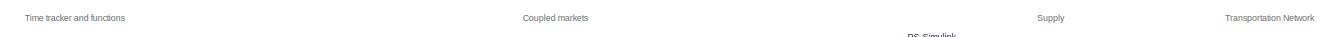
[diagram: root canvas - part 1/7, top left region]
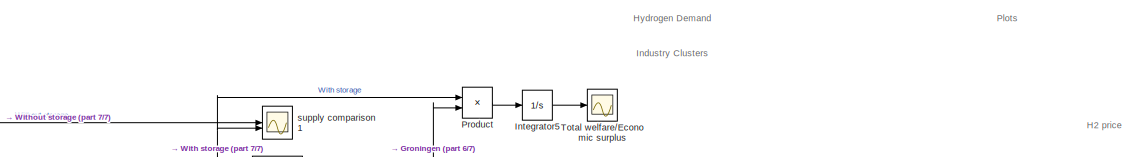
[diagram: root canvas - part 2/7, top center region]
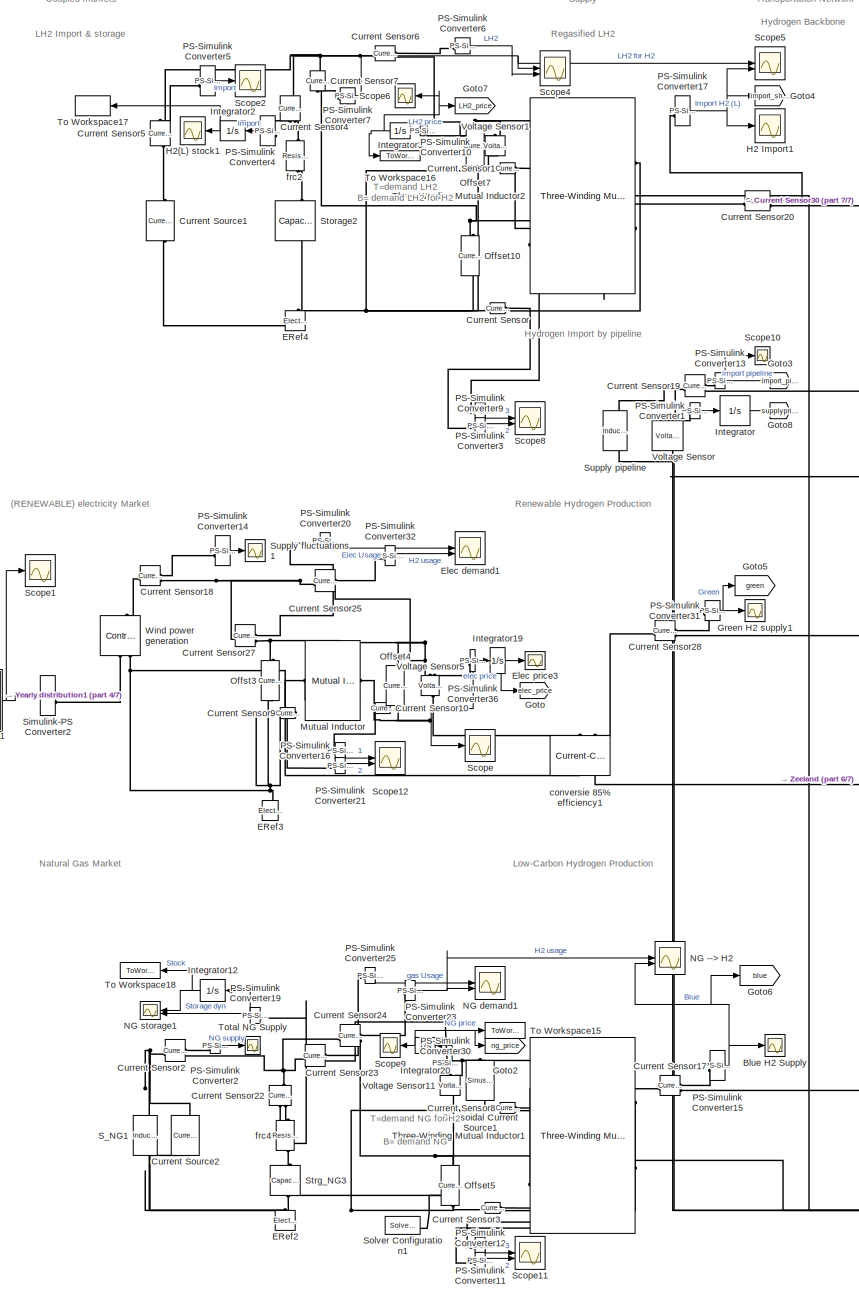
[diagram: root canvas - part 3/7, left side, full height]
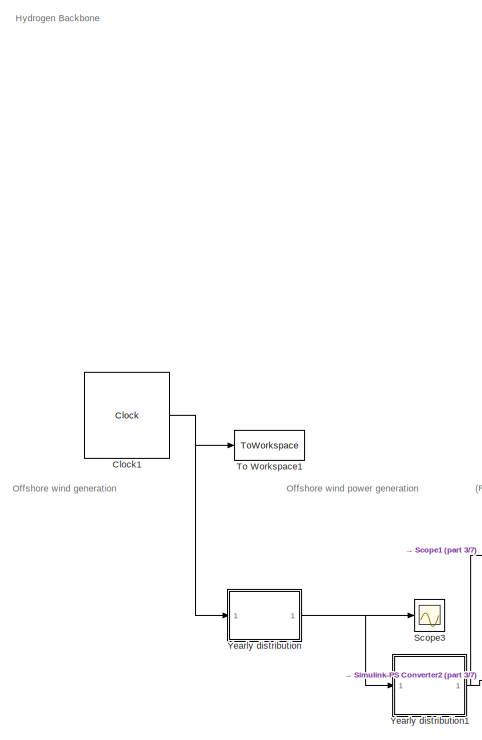
[diagram: root canvas - part 4/7, top left region]
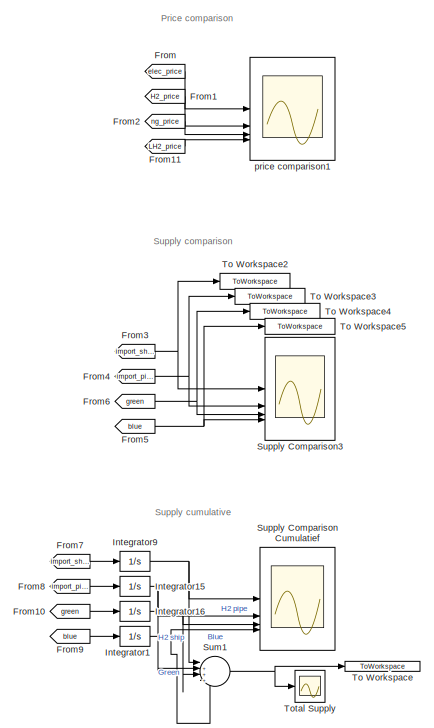
[diagram: root canvas - part 5/7, middle right region]
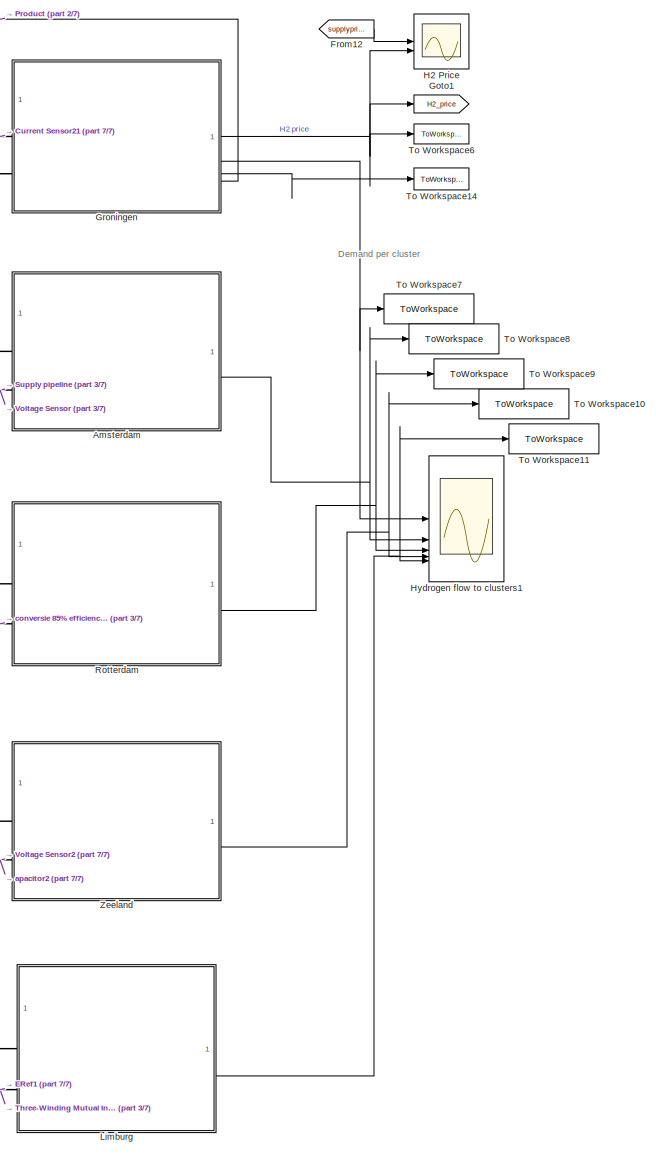
[diagram: root canvas - part 6/7, right side, full height]
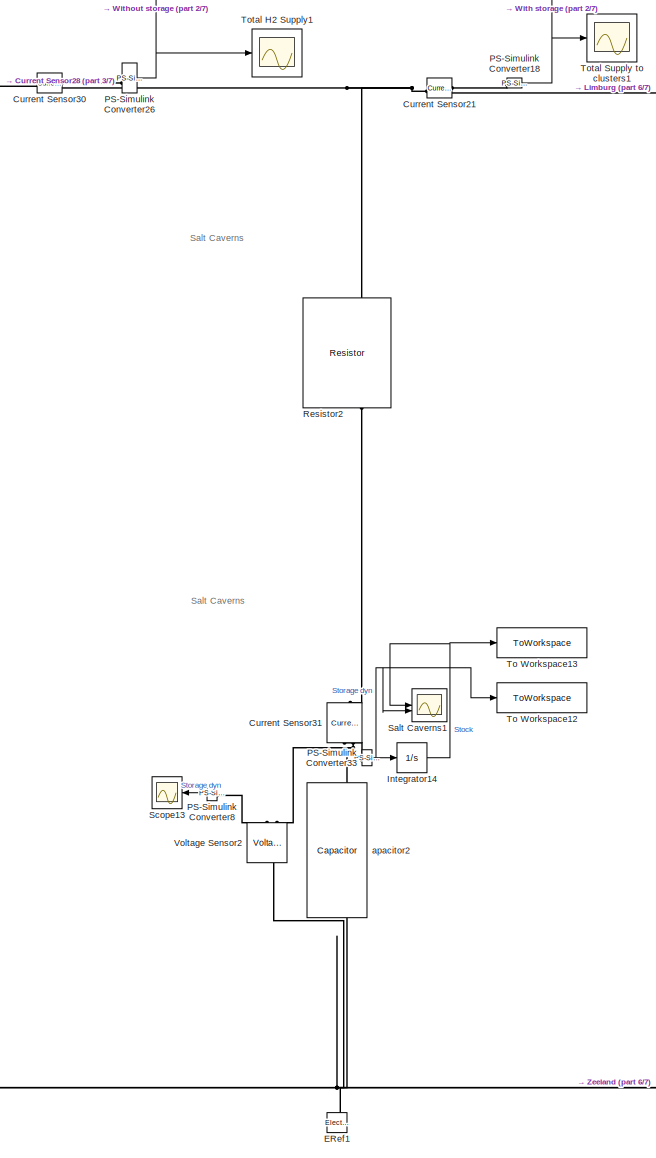
[diagram: root canvas - part 7/7, center side, full height]
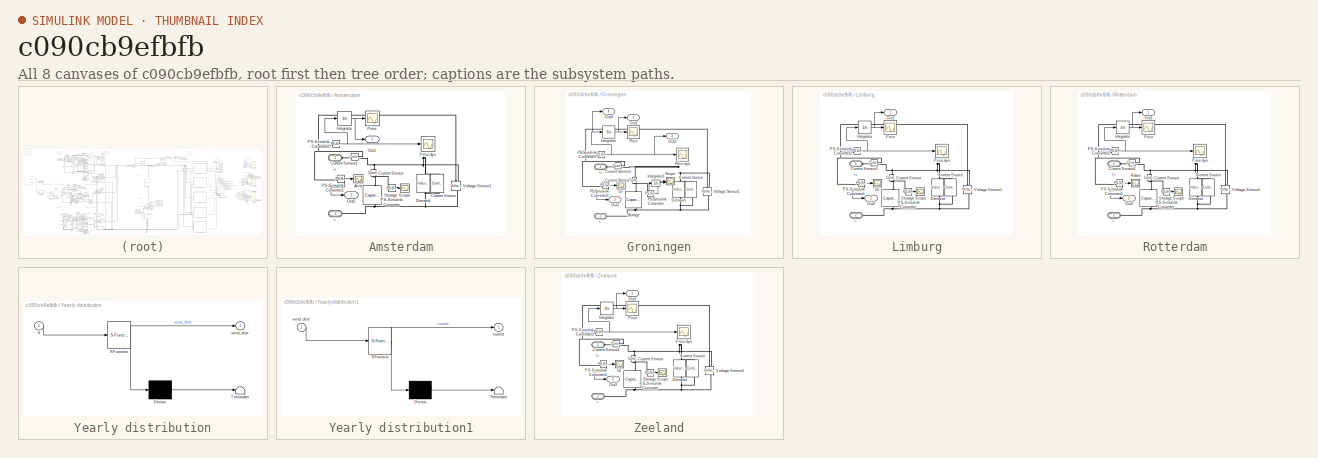
[diagram: thumbnail index - all 8 canvases of the model, root first then tree order]
MODEL slx_c090cb9efbfb
KIND model
CONFIG AbsTol = auto
CONFIG EnableMultiTasking = off
CONFIG FixedStep = 1/24
CONFIG MaxStep = auto
CONFIG MinStep = auto
CONFIG RelTol = 1e-3
CONFIG SampleTimeConstraint = Unconstrained
CONFIG SolverName = FixedStepAuto
CONFIG StartTime = 0.0
CONFIG StopTime = Z
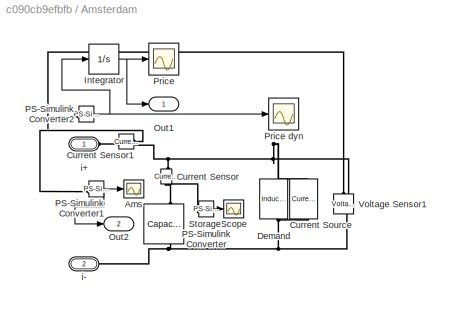
BLOCK [SubSystem] Amsterdam
BLOCK [Scope] Amsterdam/Ams
  Floating = off
  NumInputPorts = 1
  ScopeSpecificationString = Simulink.scopes.TimeScopeBlockCfg('CurrentConfiguration', extmgr.ConfigurationSet(extmgr.Configuration('Core','General UI',true),extmgr.Configuration('Core','Source UI',true),extmgr.Configuration('Sources','WiredSimulink',true,'DataLoggingVariableName','ScopeData40'),extmgr.Configuration('Visuals','Time Domain',true,'SerializedDisplays',{struct('MinYLimReal','-0.37733','MaxYLimReal','2.2197','YLab...<+1377ch>
BLOCK [Reference] Amsterdam/Current Sensor  REF=fl_lib/Electrical/Electrical Sensors/Current Sensor
  NameLocation = left
  SourceBlock = fl_lib/Electrical/Electrical Sensors/Current Sensor
  SourceType = Current Sensor
BLOCK [Reference] Amsterdam/Current Sensor1  REF=fl_lib/Electrical/Electrical Sensors/Current Sensor
  SourceBlock = fl_lib/Electrical/Electrical Sensors/Current Sensor
  SourceType = Current Sensor
BLOCK [Reference] Amsterdam/Current Source  REF=ee_lib/Sources/Current Source
  NameLocation = left
  SourceBlock = ee_lib/Sources/Current Source
  SourceType = Current Source
BLOCK [Reference] Amsterdam/Demand  REF=ee_lib/Passive/Inductor
  NameLocation = left
  SourceBlock = ee_lib/Passive/Inductor
  SourceType = Inductor
BLOCK [Integrator] Amsterdam/Integrator
BLOCK [Outport] Amsterdam/Out1
BLOCK [Outport] Amsterdam/Out2
  Port = 2
BLOCK [Reference] Amsterdam/PS-Simulink Converter  REF=nesl_utility/PS-Simulink
Converter
  SourceBlock = nesl_utility/PS-Simulink\nConverter
  SourceType = PS-Simulink\nConverter
BLOCK [Reference] Amsterdam/PS-Simulink Converter1  REF=nesl_utility/PS-Simulink
Converter
  SourceBlock = nesl_utility/PS-Simulink\nConverter
  SourceType = PS-Simulink\nConverter
BLOCK [Reference] Amsterdam/PS-Simulink Converter2  REF=nesl_utility/PS-Simulink
Converter
  SourceBlock = nesl_utility/PS-Simulink\nConverter
  SourceType = PS-Simulink\nConverter
BLOCK [Scope] Amsterdam/Price 
  Floating = off
  NumInputPorts = 1
  ScopeSpecificationString = Simulink.scopes.TimeScopeBlockCfg('CurrentConfiguration', extmgr.ConfigurationSet(extmgr.Configuration('Core','General UI',true),extmgr.Configuration('Core','Source UI',true),extmgr.Configuration('Sources','WiredSimulink',true,'DataLoggingVariableName','ScopeData41'),extmgr.Configuration('Visuals','Time Domain',true,'SerializedDisplays',{struct('MinYLimReal','-0.244','MaxYLimReal','0.02711','YLabe...<+1396ch>
BLOCK [Scope] Amsterdam/Price dyn
  Floating = off
  NumInputPorts = 1
  ScopeSpecificationString = Simulink.scopes.TimeScopeBlockCfg('CurrentConfiguration', extmgr.ConfigurationSet(extmgr.Configuration('Core','General UI',true),extmgr.Configuration('Core','Source UI',true),extmgr.Configuration('Sources','WiredSimulink',true,'DataLoggingVariableName','ScopeData42'),extmgr.Configuration('Visuals','Time Domain',true,'SerializedDisplays',{struct('MinYLimReal','-2.85552','MaxYLimReal','0.64869','YLa...<+1411ch>
BLOCK [Scope] Amsterdam/Scope
  Floating = off
  NumInputPorts = 1
  ScopeSpecificationString = Simulink.scopes.TimeScopeBlockCfg('CurrentConfiguration', extmgr.ConfigurationSet(extmgr.Configuration('Core','General UI',true),extmgr.Configuration('Core','Source UI',true),extmgr.Configuration('Sources','WiredSimulink',true,'DataLoggingVariableName','ScopeData43'),extmgr.Configuration('Visuals','Time Domain',true,'SerializedDisplays',{struct('MinYLimReal','-0.05818','MaxYLimReal','0.04351','YLa...<+1410ch>
BLOCK [Reference] Amsterdam/Storage  REF=fl_lib/Electrical/Electrical Elements/Capacitor
  NameLocation = right
  SourceBlock = fl_lib/Electrical/Electrical Elements/Capacitor
  SourceType = Capacitor
BLOCK [Reference] Amsterdam/Voltage Sensor1  REF=fl_lib/Electrical/Electrical Sensors/Voltage Sensor
  NameLocation = right
  SourceBlock = fl_lib/Electrical/Electrical Sensors/Voltage Sensor
  SourceType = Voltage Sensor
BLOCK [PMIOPort] Amsterdam/i+ 
  Side = Left
  Tag = PMCPort
BLOCK [PMIOPort] Amsterdam/i-
  Port = 2
  Side = Left
  Tag = PMCPort
BLOCK [Scope] Blue H2 Supply
  Floating = off
  NumInputPorts = 1
  ScopeSpecificationString = Simulink.scopes.TimeScopeBlockCfg('CurrentConfiguration', extmgr.ConfigurationSet(extmgr.Configuration('Core','General UI',true),extmgr.Configuration('Core','Source UI',true),extmgr.Configuration('Sources','WiredSimulink',true,'DataLoggingVariableName','ScopeData3'),extmgr.Configuration('Visuals','Time Domain',true,'SerializedDisplays',{struct('MinYLimReal','-0.07535','MaxYLimReal','0.18841','YLab...<+1398ch>
BLOCK [Clock] Clock1
  Decimation = 24
  DisplayTime = on
BLOCK [Reference] Current Sensor  REF=fl_lib/Electrical/Electrical Sensors/Current Sensor
  SourceBlock = fl_lib/Electrical/Electrical Sensors/Current Sensor
  SourceType = Current Sensor
BLOCK [Reference] Current Sensor1  REF=fl_lib/Electrical/Electrical Sensors/Current Sensor
  SourceBlock = fl_lib/Electrical/Electrical Sensors/Current Sensor
  SourceType = Current Sensor
BLOCK [Reference] Current Sensor10  REF=fl_lib/Electrical/Electrical Sensors/Current Sensor
  SourceBlock = fl_lib/Electrical/Electrical Sensors/Current Sensor
  SourceType = Current Sensor
BLOCK [Reference] Current Sensor17  REF=fl_lib/Electrical/Electrical Sensors/Current Sensor
  SourceBlock = fl_lib/Electrical/Electrical Sensors/Current Sensor
  SourceType = Current Sensor
BLOCK [Reference] Current Sensor18  REF=fl_lib/Electrical/Electrical Sensors/Current Sensor
  SourceBlock = fl_lib/Electrical/Electrical Sensors/Current Sensor
  SourceType = Current Sensor
BLOCK [Reference] Current Sensor19  REF=fl_lib/Electrical/Electrical Sensors/Current Sensor
  SourceBlock = fl_lib/Electrical/Electrical Sensors/Current Sensor
  SourceType = Current Sensor
BLOCK [Reference] Current Sensor2  REF=fl_lib/Electrical/Electrical Sensors/Current Sensor
  SourceBlock = fl_lib/Electrical/Electrical Sensors/Current Sensor
  SourceType = Current Sensor
BLOCK [Reference] Current Sensor20  REF=fl_lib/Electrical/Electrical Sensors/Current Sensor
  SourceBlock = fl_lib/Electrical/Electrical Sensors/Current Sensor
  SourceType = Current Sensor
BLOCK [Reference] Current Sensor21  REF=fl_lib/Electrical/Electrical Sensors/Current Sensor
  SourceBlock = fl_lib/Electrical/Electrical Sensors/Current Sensor
  SourceType = Current Sensor
BLOCK [Reference] Current Sensor22  REF=fl_lib/Electrical/Electrical Sensors/Current Sensor
  NameLocation = left
  SourceBlock = fl_lib/Electrical/Electrical Sensors/Current Sensor
  SourceType = Current Sensor
BLOCK [Reference] Current Sensor23  REF=fl_lib/Electrical/Electrical Sensors/Current Sensor
  SourceBlock = fl_lib/Electrical/Electrical Sensors/Current Sensor
  SourceType = Current Sensor
BLOCK [Reference] Current Sensor24  REF=fl_lib/Electrical/Electrical Sensors/Current Sensor
  SourceBlock = fl_lib/Electrical/Electrical Sensors/Current Sensor
  SourceType = Current Sensor
BLOCK [Reference] Current Sensor25  REF=fl_lib/Electrical/Electrical Sensors/Current Sensor
  SourceBlock = fl_lib/Electrical/Electrical Sensors/Current Sensor
  SourceType = Current Sensor
BLOCK [Reference] Current Sensor27  REF=fl_lib/Electrical/Electrical Sensors/Current Sensor
  SourceBlock = fl_lib/Electrical/Electrical Sensors/Current Sensor
  SourceType = Current Sensor
BLOCK [Reference] Current Sensor28  REF=fl_lib/Electrical/Electrical Sensors/Current Sensor
  SourceBlock = fl_lib/Electrical/Electrical Sensors/Current Sensor
  SourceType = Current Sensor
BLOCK [Reference] Current Sensor3  REF=fl_lib/Electrical/Electrical Sensors/Current Sensor
  SourceBlock = fl_lib/Electrical/Electrical Sensors/Current Sensor
  SourceType = Current Sensor
BLOCK [Reference] Current Sensor30  REF=fl_lib/Electrical/Electrical Sensors/Current Sensor
  SourceBlock = fl_lib/Electrical/Electrical Sensors/Current Sensor
  SourceType = Current Sensor
BLOCK [Reference] Current Sensor31  REF=fl_lib/Electrical/Electrical Sensors/Current Sensor
  NameLocation = left
  SourceBlock = fl_lib/Electrical/Electrical Sensors/Current Sensor
  SourceType = Current Sensor
BLOCK [Reference] Current Sensor4  REF=fl_lib/Electrical/Electrical Sensors/Current Sensor
  NameLocation = right
  SourceBlock = fl_lib/Electrical/Electrical Sensors/Current Sensor
  SourceType = Current Sensor
BLOCK [Reference] Current Sensor5  REF=fl_lib/Electrical/Electrical Sensors/Current Sensor
  NameLocation = right
  SourceBlock = fl_lib/Electrical/Electrical Sensors/Current Sensor
  SourceType = Current Sensor
BLOCK [Reference] Current Sensor6  REF=fl_lib/Electrical/Electrical Sensors/Current Sensor
  SourceBlock = fl_lib/Electrical/Electrical Sensors/Current Sensor
  SourceType = Current Sensor
BLOCK [Reference] Current Sensor7  REF=fl_lib/Electrical/Electrical Sensors/Current Sensor
  NameLocation = left
  SourceBlock = fl_lib/Electrical/Electrical Sensors/Current Sensor
  SourceType = Current Sensor
BLOCK [Reference] Current Sensor8  REF=fl_lib/Electrical/Electrical Sensors/Current Sensor
  SourceBlock = fl_lib/Electrical/Electrical Sensors/Current Sensor
  SourceType = Current Sensor
BLOCK [Reference] Current Sensor9  REF=fl_lib/Electrical/Electrical Sensors/Current Sensor
  SourceBlock = fl_lib/Electrical/Electrical Sensors/Current Sensor
  SourceType = Current Sensor
BLOCK [Reference] Current Source1  REF=ee_lib/Sources/Current Source
  NameLocation = right
  SourceBlock = ee_lib/Sources/Current Source
  SourceType = Current Source
BLOCK [Reference] Current Source2  REF=ee_lib/Sources/Current Source
  NameLocation = right
  SourceBlock = ee_lib/Sources/Current Source
  SourceType = Current Source
BLOCK [Reference] ERef1  REF=fl_lib/Electrical/Electrical Elements/Electrical Reference
  NameLocation = left
  SourceBlock = fl_lib/Electrical/Electrical Elements/Electrical Reference
  SourceType = Electrical Reference
BLOCK [Reference] ERef2  REF=fl_lib/Electrical/Electrical Elements/Electrical Reference
  NameLocation = left
  SourceBlock = fl_lib/Electrical/Electrical Elements/Electrical Reference
  SourceType = Electrical Reference
BLOCK [Reference] ERef3  REF=fl_lib/Electrical/Electrical Elements/Electrical Reference
  NameLocation = left
  SourceBlock = fl_lib/Electrical/Electrical Elements/Electrical Reference
  SourceType = Electrical Reference
BLOCK [Reference] ERef4  REF=fl_lib/Electrical/Electrical Elements/Electrical Reference
  NameLocation = left
  SourceBlock = fl_lib/Electrical/Electrical Elements/Electrical Reference
  SourceType = Electrical Reference
BLOCK [Scope] Elec demand1
  Floating = off
  NumInputPorts = 2
  ScopeSpecificationString = Simulink.scopes.TimeScopeBlockCfg('CurrentConfiguration', extmgr.ConfigurationSet(extmgr.Configuration('Core','General UI',true),extmgr.Configuration('Core','Source UI',true),extmgr.Configuration('Sources','WiredSimulink',true,'DataLoggingVariableName','ScopeData1'),extmgr.Configuration('Visuals','Time Domain',true,'SerializedDisplays',{struct('MinYLimReal','-0.09912','MaxYLimReal','0.27902','YLab...<+1475ch>
BLOCK [Scope] Elec price3
  Floating = off
  NameLocation = right
  NumInputPorts = 1
  ScopeSpecificationString = Simulink.scopes.TimeScopeBlockCfg('CurrentConfiguration', extmgr.ConfigurationSet(extmgr.Configuration('Core','General UI',true),extmgr.Configuration('Core','Source UI',true),extmgr.Configuration('Sources','WiredSimulink',true,'DataLoggingVariableName','ScopeData2'),extmgr.Configuration('Visuals','Time Domain',true,'SerializedDisplays',{struct('MinYLimReal','-0.05691','MaxYLimReal','0.07674','YLab...<+1492ch>
BLOCK [From] From
  GotoTag = elec_price
BLOCK [From] From1
  GotoTag = H2_price
BLOCK [From] From10
  GotoTag = green
BLOCK [From] From11
  GotoTag = LH2_price
BLOCK [From] From12
  GotoTag = supplyprice
BLOCK [From] From2
  GotoTag = ng_price
BLOCK [From] From3
  GotoTag = import_ship
BLOCK [From] From4
  GotoTag = import_pipe
BLOCK [From] From5
  GotoTag = blue
BLOCK [From] From6
  GotoTag = green
BLOCK [From] From7
  GotoTag = import_ship
BLOCK [From] From8
  GotoTag = import_pipe
BLOCK [From] From9
  GotoTag = blue
BLOCK [Goto] Goto
  GotoTag = elec_price
BLOCK [Goto] Goto1
  GotoTag = H2_price
BLOCK [Goto] Goto2
  GotoTag = ng_price
BLOCK [Goto] Goto3
  GotoTag = import_pipe
BLOCK [Goto] Goto4
  GotoTag = import_ship
BLOCK [Goto] Goto5
  GotoTag = green
BLOCK [Goto] Goto6
  GotoTag = blue
BLOCK [Goto] Goto7
  GotoTag = LH2_price
BLOCK [Goto] Goto8
  GotoTag = supplyprice
BLOCK [Scope] Green H2 supply1
  Floating = off
  NumInputPorts = 1
  ScopeSpecificationString = Simulink.scopes.TimeScopeBlockCfg('CurrentConfiguration', extmgr.ConfigurationSet(extmgr.Configuration('Core','General UI',true),extmgr.Configuration('Core','Source UI',true),extmgr.Configuration('Sources','WiredSimulink',true,'DataLoggingVariableName','ScopeData4'),extmgr.Configuration('Visuals','Time Domain',true,'SerializedDisplays',{struct('MinYLimReal','-0.0315','MaxYLimReal','0.40721','YLabe...<+1435ch>
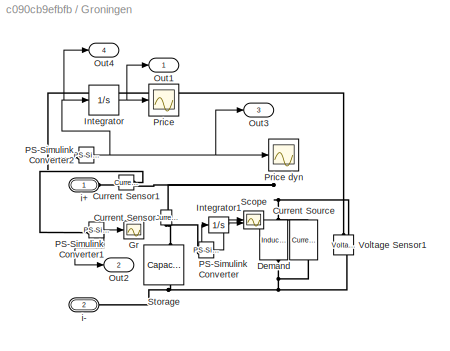
BLOCK [SubSystem] Groningen
BLOCK [Reference] Groningen/Current Sensor  REF=fl_lib/Electrical/Electrical Sensors/Current Sensor
  NameLocation = left
  SourceBlock = fl_lib/Electrical/Electrical Sensors/Current Sensor
  SourceType = Current Sensor
BLOCK [Reference] Groningen/Current Sensor1  REF=fl_lib/Electrical/Electrical Sensors/Current Sensor
  SourceBlock = fl_lib/Electrical/Electrical Sensors/Current Sensor
  SourceType = Current Sensor
BLOCK [Reference] Groningen/Current Source  REF=ee_lib/Sources/Current Source
  NameLocation = left
  SourceBlock = ee_lib/Sources/Current Source
  SourceType = Current Source
BLOCK [Reference] Groningen/Demand  REF=ee_lib/Passive/Inductor
  NameLocation = left
  SourceBlock = ee_lib/Passive/Inductor
  SourceType = Inductor
BLOCK [Scope] Groningen/Gr
  Floating = off
  NumInputPorts = 1
  ScopeSpecificationString = Simulink.scopes.TimeScopeBlockCfg('CurrentConfiguration', extmgr.ConfigurationSet(extmgr.Configuration('Core','General UI',true),extmgr.Configuration('Core','Source UI',true),extmgr.Configuration('Sources','WiredSimulink',true,'DataLoggingVariableName','ScopeData39'),extmgr.Configuration('Visuals','Time Domain',true,'SerializedDisplays',{struct('MinYLimReal','0.02465','MaxYLimReal','0.12849','YLab...<+1380ch>
BLOCK [Integrator] Groningen/Integrator
BLOCK [Integrator] Groningen/Integrator1
BLOCK [Outport] Groningen/Out1
BLOCK [Outport] Groningen/Out2
  Port = 2
BLOCK [Outport] Groningen/Out3
  Port = 3
BLOCK [Outport] Groningen/Out4
  Port = 4
BLOCK [Reference] Groningen/PS-Simulink Converter  REF=nesl_utility/PS-Simulink
Converter
  SourceBlock = nesl_utility/PS-Simulink\nConverter
  SourceType = PS-Simulink\nConverter
BLOCK [Reference] Groningen/PS-Simulink Converter1  REF=nesl_utility/PS-Simulink
Converter
  SourceBlock = nesl_utility/PS-Simulink\nConverter
  SourceType = PS-Simulink\nConverter
BLOCK [Reference] Groningen/PS-Simulink Converter2  REF=nesl_utility/PS-Simulink
Converter
  SourceBlock = nesl_utility/PS-Simulink\nConverter
  SourceType = PS-Simulink\nConverter
BLOCK [Scope] Groningen/Price 
  Floating = off
  NumInputPorts = 1
  ScopeSpecificationString = Simulink.scopes.TimeScopeBlockCfg('CurrentConfiguration', extmgr.ConfigurationSet(extmgr.Configuration('Core','General UI',true),extmgr.Configuration('Core','Source UI',true),extmgr.Configuration('Sources','WiredSimulink',true,'DataLoggingVariableName','ScopeData1'),extmgr.Configuration('Visuals','Time Domain',true,'SerializedDisplays',{struct('MinYLimReal','-0.00054','MaxYLimReal','0.00489','YLab...<+1403ch>
BLOCK [Scope] Groningen/Price dyn
  Floating = off
  NumInputPorts = 1
  ScopeSpecificationString = Simulink.scopes.TimeScopeBlockCfg('CurrentConfiguration', extmgr.ConfigurationSet(extmgr.Configuration('Core','General UI',true),extmgr.Configuration('Core','Source UI',true),extmgr.Configuration('Sources','WiredSimulink',true,'DataLoggingVariableName','ScopeData4'),extmgr.Configuration('Visuals','Time Domain',true,'SerializedDisplays',{struct('MinYLimReal','-0.00582','MaxYLimReal','0.01451','YLab...<+1410ch>
BLOCK [Scope] Groningen/Scope
  Floating = off
  NumInputPorts = 2
  ScopeSpecificationString = Simulink.scopes.TimeScopeBlockCfg('CurrentConfiguration', extmgr.ConfigurationSet(extmgr.Configuration('Core','General UI',true),extmgr.Configuration('Core','Source UI',true),extmgr.Configuration('Sources','WiredSimulink',true),extmgr.Configuration('Visuals','Time Domain',true,'SerializedDisplays',{struct('MinYLimReal','-0.00546','MaxYLimReal','0.00503','YLabelReal','','MinYLimMag','0.00000','MaxY...<+1427ch>
BLOCK [Reference] Groningen/Storage  REF=fl_lib/Electrical/Electrical Elements/Capacitor
  NameLocation = right
  SourceBlock = fl_lib/Electrical/Electrical Elements/Capacitor
  SourceType = Capacitor
BLOCK [Reference] Groningen/Voltage Sensor1  REF=fl_lib/Electrical/Electrical Sensors/Voltage Sensor
  NameLocation = right
  SourceBlock = fl_lib/Electrical/Electrical Sensors/Voltage Sensor
  SourceType = Voltage Sensor
BLOCK [PMIOPort] Groningen/i+ 
  Side = Left
  Tag = PMCPort
BLOCK [PMIOPort] Groningen/i-
  Port = 2
  Side = Left
  Tag = PMCPort
BLOCK [Scope] H2 Import1
  Floating = off
  NumInputPorts = 1
  ScopeSpecificationString = Simulink.scopes.TimeScopeBlockCfg('CurrentConfiguration', extmgr.ConfigurationSet(extmgr.Configuration('Core','General UI',true),extmgr.Configuration('Core','Source UI',true),extmgr.Configuration('Sources','WiredSimulink',true,'DataLoggingVariableName','ScopeData5'),extmgr.Configuration('Visuals','Time Domain',true,'SerializedDisplays',{struct('MinYLimReal','-0.31584','MaxYLimReal','0.40104','YLab...<+1447ch>
BLOCK [Scope] H2 Price
  Floating = off
  NumInputPorts = 2
  ScopeSpecificationString = Simulink.scopes.TimeScopeBlockCfg('CurrentConfiguration', extmgr.ConfigurationSet(extmgr.Configuration('Core','General UI',true),extmgr.Configuration('Core','Source UI',true),extmgr.Configuration('Sources','WiredSimulink',true,'DataLoggingVariableName','ScopeData6'),extmgr.Configuration('Visuals','Time Domain',true,'SerializedDisplays',{struct('MinYLimReal','-0.00081','MaxYLimReal','0.00729','YLab...<+1458ch>
BLOCK [Scope] H2(L) stock1
  Floating = off
  NumInputPorts = 1
  ScopeSpecificationString = Simulink.scopes.TimeScopeBlockCfg('CurrentConfiguration', extmgr.ConfigurationSet(extmgr.Configuration('Core','General UI',true),extmgr.Configuration('Core','Source UI',true),extmgr.Configuration('Sources','WiredSimulink',true,'DataLoggingVariableName','ScopeData7'),extmgr.Configuration('Visuals','Time Domain',true,'SerializedDisplays',{struct('MinYLimReal','-0.04116','MaxYLimReal','0.00457','YLab...<+1443ch>
BLOCK [Scope] Hydrogen flow to clusters1
  Floating = off
  NumInputPorts = 5
  ScopeSpecificationString = Simulink.scopes.TimeScopeBlockCfg('CurrentConfiguration', extmgr.ConfigurationSet(extmgr.Configuration('Core','General UI',true),extmgr.Configuration('Core','Source UI',true),extmgr.Configuration('Sources','WiredSimulink',true,'DataLoggingVariableName','ScopeData8'),extmgr.Configuration('Visuals','Time Domain',true,'SerializedDisplays',{struct('MinYLimReal','-0.093','MaxYLimReal','0.21447','YLabel...<+1654ch>
BLOCK [Integrator] Integrator
BLOCK [Integrator] Integrator1
BLOCK [Integrator] Integrator12
BLOCK [Integrator] Integrator14
BLOCK [Integrator] Integrator15
BLOCK [Integrator] Integrator16
BLOCK [Integrator] Integrator19
BLOCK [Integrator] Integrator2
BLOCK [Integrator] Integrator20
BLOCK [Integrator] Integrator3
BLOCK [Integrator] Integrator5
BLOCK [Integrator] Integrator9
BLOCK [SubSystem] Limburg
BLOCK [Reference] Limburg/Current Sensor  REF=fl_lib/Electrical/Electrical Sensors/Current Sensor
  NameLocation = left
  SourceBlock = fl_lib/Electrical/Electrical Sensors/Current Sensor
  SourceType = Current Sensor
BLOCK [Reference] Limburg/Current Sensor1  REF=fl_lib/Electrical/Electrical Sensors/Current Sensor
  SourceBlock = fl_lib/Electrical/Electrical Sensors/Current Sensor
  SourceType = Current Sensor
BLOCK [Reference] Limburg/Current Source  REF=ee_lib/Sources/Current Source
  NameLocation = left
  SourceBlock = ee_lib/Sources/Current Source
  SourceType = Current Source
BLOCK [Reference] Limburg/Demand  REF=ee_lib/Passive/Inductor
  NameLocation = left
  SourceBlock = ee_lib/Passive/Inductor
  SourceType = Inductor
BLOCK [Scope] Limburg/Gr
  Floating = off
  NumInputPorts = 1
  ScopeSpecificationString = Simulink.scopes.TimeScopeBlockCfg('CurrentConfiguration', extmgr.ConfigurationSet(extmgr.Configuration('Core','General UI',true),extmgr.Configuration('Core','Source UI',true),extmgr.Configuration('Sources','WiredSimulink',true,'DataLoggingVariableName','ScopeData52'),extmgr.Configuration('Visuals','Time Domain',true,'SerializedDisplays',{struct('MinYLimReal','-0.37733','MaxYLimReal','2.2197','YLab...<+1377ch>
BLOCK [Integrator] Limburg/Integrator
BLOCK [Outport] Limburg/Out1
BLOCK [Outport] Limburg/Out2
  Port = 2
BLOCK [Reference] Limburg/PS-Simulink Converter  REF=nesl_utility/PS-Simulink
Converter
  SourceBlock = nesl_utility/PS-Simulink\nConverter
  SourceType = PS-Simulink\nConverter
BLOCK [Reference] Limburg/PS-Simulink Converter1  REF=nesl_utility/PS-Simulink
Converter
  SourceBlock = nesl_utility/PS-Simulink\nConverter
  SourceType = PS-Simulink\nConverter
BLOCK [Reference] Limburg/PS-Simulink Converter2  REF=nesl_utility/PS-Simulink
Converter
  SourceBlock = nesl_utility/PS-Simulink\nConverter
  SourceType = PS-Simulink\nConverter
BLOCK [Scope] Limburg/Price 
  Floating = off
  NumInputPorts = 1
  ScopeSpecificationString = Simulink.scopes.TimeScopeBlockCfg('CurrentConfiguration', extmgr.ConfigurationSet(extmgr.Configuration('Core','General UI',true),extmgr.Configuration('Core','Source UI',true),extmgr.Configuration('Sources','WiredSimulink',true,'DataLoggingVariableName','ScopeData53'),extmgr.Configuration('Visuals','Time Domain',true,'SerializedDisplays',{struct('MinYLimReal','-0.244','MaxYLimReal','0.02711','YLabe...<+1396ch>
BLOCK [Scope] Limburg/Price dyn
  Floating = off
  NumInputPorts = 1
  ScopeSpecificationString = Simulink.scopes.TimeScopeBlockCfg('CurrentConfiguration', extmgr.ConfigurationSet(extmgr.Configuration('Core','General UI',true),extmgr.Configuration('Core','Source UI',true),extmgr.Configuration('Sources','WiredSimulink',true,'DataLoggingVariableName','ScopeData54'),extmgr.Configuration('Visuals','Time Domain',true,'SerializedDisplays',{struct('MinYLimReal','-2.85552','MaxYLimReal','0.64869','YLa...<+1411ch>
BLOCK [Scope] Limburg/Scope
  Floating = off
  NumInputPorts = 1
  ScopeSpecificationString = Simulink.scopes.TimeScopeBlockCfg('CurrentConfiguration', extmgr.ConfigurationSet(extmgr.Configuration('Core','General UI',true),extmgr.Configuration('Core','Source UI',true),extmgr.Configuration('Sources','WiredSimulink',true,'DataLoggingVariableName','ScopeData55'),extmgr.Configuration('Visuals','Time Domain',true,'SerializedDisplays',{struct('MinYLimReal','-0.37733','MaxYLimReal','2.2197','YLab...<+1377ch>
BLOCK [Reference] Limburg/Storage  REF=fl_lib/Electrical/Electrical Elements/Capacitor
  NameLocation = right
  SourceBlock = fl_lib/Electrical/Electrical Elements/Capacitor
  SourceType = Capacitor
BLOCK [Reference] Limburg/Voltage Sensor1  REF=fl_lib/Electrical/Electrical Sensors/Voltage Sensor
  NameLocation = right
  SourceBlock = fl_lib/Electrical/Electrical Sensors/Voltage Sensor
  SourceType = Voltage Sensor
BLOCK [PMIOPort] Limburg/i+ 
  Side = Left
  Tag = PMCPort
BLOCK [PMIOPort] Limburg/i-
  Port = 2
  Side = Left
  Tag = PMCPort
BLOCK [Reference] Mutual Inductor  REF=fl_lib/Electrical/Electrical Elements/Mutual Inductor
  SourceBlock = fl_lib/Electrical/Electrical Elements/Mutual Inductor
  SourceType = Mutual Inductor
BLOCK [Scope] NG --> H2
  Floating = off
  NumInputPorts = 2
  ScopeSpecificationString = Simulink.scopes.TimeScopeBlockCfg('CurrentConfiguration', extmgr.ConfigurationSet(extmgr.Configuration('Core','General UI',true),extmgr.Configuration('Core','Source UI',true),extmgr.Configuration('Sources','WiredSimulink',true,'DataLoggingVariableName','ScopeData9'),extmgr.Configuration('Visuals','Time Domain',true,'SerializedDisplays',{struct('MinYLimReal','-0.20264','MaxYLimReal','0.33461','YLab...<+1445ch>
BLOCK [Scope] NG demand1
  Floating = off
  NumInputPorts = 2
  ScopeSpecificationString = Simulink.scopes.TimeScopeBlockCfg('CurrentConfiguration', extmgr.ConfigurationSet(extmgr.Configuration('Core','General UI',true),extmgr.Configuration('Core','Source UI',true),extmgr.Configuration('Sources','WiredSimulink',true,'DataLoggingVariableName','ScopeData10'),extmgr.Configuration('Visuals','Time Domain',true,'SerializedDisplays',{struct('MinYLimReal','-0.18362','MaxYLimReal','0.90311','YLa...<+1451ch>
BLOCK [Scope] NG storage1
  Floating = off
  NumInputPorts = 2
  ScopeSpecificationString = Simulink.scopes.TimeScopeBlockCfg('CurrentConfiguration', extmgr.ConfigurationSet(extmgr.Configuration('Core','General UI',true),extmgr.Configuration('Core','Source UI',true),extmgr.Configuration('Sources','WiredSimulink',true,'DataLoggingVariableName','ScopeData11'),extmgr.Configuration('Visuals','Time Domain',true,'SerializedDisplays',{struct('MinYLimReal','-0.0773','MaxYLimReal','0.05876','YLab...<+1491ch>
BLOCK [Reference] Offset10  REF=ee_lib/Sources/Current Source
  NameLocation = right
  SourceBlock = ee_lib/Sources/Current Source
  SourceType = Current Source
BLOCK [Reference] Offset4  REF=ee_lib/Sources/Current Source
  NameLocation = right
  SourceBlock = ee_lib/Sources/Current Source
  SourceType = Current Source
BLOCK [Reference] Offset5  REF=ee_lib/Sources/Current Source
  NameLocation = right
  SourceBlock = ee_lib/Sources/Current Source
  SourceType = Current Source
BLOCK [Reference] Offset7  REF=ee_lib/Sources/Current Source
  NameLocation = right
  SourceBlock = ee_lib/Sources/Current Source
  SourceType = Current Source
BLOCK [Reference] Offst3  REF=ee_lib/Sources/Current Source
  NameLocation = right
  SourceBlock = ee_lib/Sources/Current Source
  SourceType = Current Source
BLOCK [Reference] PS-Simulink Converter1  REF=nesl_utility/PS-Simulink
Converter
  NameLocation = top
  SourceBlock = nesl_utility/PS-Simulink\nConverter
  SourceType = PS-Simulink\nConverter
BLOCK [Reference] PS-Simulink Converter10  REF=nesl_utility/PS-Simulink
Converter
  NameLocation = top
  SourceBlock = nesl_utility/PS-Simulink\nConverter
  SourceType = PS-Simulink\nConverter
BLOCK [Reference] PS-Simulink Converter11  REF=nesl_utility/PS-Simulink
Converter
  NameLocation = top
  SourceBlock = nesl_utility/PS-Simulink\nConverter
  SourceType = PS-Simulink\nConverter
BLOCK [Reference] PS-Simulink Converter12  REF=nesl_utility/PS-Simulink
Converter
  NameLocation = top
  SourceBlock = nesl_utility/PS-Simulink\nConverter
  SourceType = PS-Simulink\nConverter
BLOCK [Reference] PS-Simulink Converter13  REF=nesl_utility/PS-Simulink
Converter
  NameLocation = top
  SourceBlock = nesl_utility/PS-Simulink\nConverter
  SourceType = PS-Simulink\nConverter
BLOCK [Reference] PS-Simulink Converter14  REF=nesl_utility/PS-Simulink
Converter
  NameLocation = top
  SourceBlock = nesl_utility/PS-Simulink\nConverter
  SourceType = PS-Simulink\nConverter
BLOCK [Reference] PS-Simulink Converter15  REF=nesl_utility/PS-Simulink
Converter
  NameLocation = top
  SourceBlock = nesl_utility/PS-Simulink\nConverter
  SourceType = PS-Simulink\nConverter
BLOCK [Reference] PS-Simulink Converter16  REF=nesl_utility/PS-Simulink
Converter
  NameLocation = top
  SourceBlock = nesl_utility/PS-Simulink\nConverter
  SourceType = PS-Simulink\nConverter
BLOCK [Reference] PS-Simulink Converter17  REF=nesl_utility/PS-Simulink
Converter
  NameLocation = top
  SourceBlock = nesl_utility/PS-Simulink\nConverter
  SourceType = PS-Simulink\nConverter
BLOCK [Reference] PS-Simulink Converter18  REF=nesl_utility/PS-Simulink
Converter
  NameLocation = top
  SourceBlock = nesl_utility/PS-Simulink\nConverter
  SourceType = PS-Simulink\nConverter
BLOCK [Reference] PS-Simulink Converter19  REF=nesl_utility/PS-Simulink
Converter
  NameLocation = top
  SourceBlock = nesl_utility/PS-Simulink\nConverter
  SourceType = PS-Simulink\nConverter
BLOCK [Reference] PS-Simulink Converter2  REF=nesl_utility/PS-Simulink
Converter
  NameLocation = top
  SourceBlock = nesl_utility/PS-Simulink\nConverter
  SourceType = PS-Simulink\nConverter
BLOCK [Reference] PS-Simulink Converter20  REF=nesl_utility/PS-Simulink
Converter
  NameLocation = top
  SourceBlock = nesl_utility/PS-Simulink\nConverter
  SourceType = PS-Simulink\nConverter
BLOCK [Reference] PS-Simulink Converter21  REF=nesl_utility/PS-Simulink
Converter
  NameLocation = top
  SourceBlock = nesl_utility/PS-Simulink\nConverter
  SourceType = PS-Simulink\nConverter
BLOCK [Reference] PS-Simulink Converter23  REF=nesl_utility/PS-Simulink
Converter
  NameLocation = top
  SourceBlock = nesl_utility/PS-Simulink\nConverter
  SourceType = PS-Simulink\nConverter
BLOCK [Reference] PS-Simulink Converter25  REF=nesl_utility/PS-Simulink
Converter
  NameLocation = top
  SourceBlock = nesl_utility/PS-Simulink\nConverter
  SourceType = PS-Simulink\nConverter
BLOCK [Reference] PS-Simulink Converter26  REF=nesl_utility/PS-Simulink
Converter
  NameLocation = top
  SourceBlock = nesl_utility/PS-Simulink\nConverter
  SourceType = PS-Simulink\nConverter
BLOCK [Reference] PS-Simulink Converter3  REF=nesl_utility/PS-Simulink
Converter
  NameLocation = top
  SourceBlock = nesl_utility/PS-Simulink\nConverter
  SourceType = PS-Simulink\nConverter
BLOCK [Reference] PS-Simulink Converter30  REF=nesl_utility/PS-Simulink
Converter
  NameLocation = right
  SourceBlock = nesl_utility/PS-Simulink\nConverter
  SourceType = PS-Simulink\nConverter
BLOCK [Reference] PS-Simulink Converter31  REF=nesl_utility/PS-Simulink
Converter
  NameLocation = right
  SourceBlock = nesl_utility/PS-Simulink\nConverter
  SourceType = PS-Simulink\nConverter
BLOCK [Reference] PS-Simulink Converter32  REF=nesl_utility/PS-Simulink
Converter
  NameLocation = top
  SourceBlock = nesl_utility/PS-Simulink\nConverter
  SourceType = PS-Simulink\nConverter
BLOCK [Reference] PS-Simulink Converter33  REF=nesl_utility/PS-Simulink
Converter
  NameLocation = top
  SourceBlock = nesl_utility/PS-Simulink\nConverter
  SourceType = PS-Simulink\nConverter
BLOCK [Reference] PS-Simulink Converter36  REF=nesl_utility/PS-Simulink
Converter
  NameLocation = top
  SourceBlock = nesl_utility/PS-Simulink\nConverter
  SourceType = PS-Simulink\nConverter
BLOCK [Reference] PS-Simulink Converter4  REF=nesl_utility/PS-Simulink
Converter
  NameLocation = top
  SourceBlock = nesl_utility/PS-Simulink\nConverter
  SourceType = PS-Simulink\nConverter
BLOCK [Reference] PS-Simulink Converter5  REF=nesl_utility/PS-Simulink
Converter
  NameLocation = top
  SourceBlock = nesl_utility/PS-Simulink\nConverter
  SourceType = PS-Simulink\nConverter
BLOCK [Reference] PS-Simulink Converter6  REF=nesl_utility/PS-Simulink
Converter
  SourceBlock = nesl_utility/PS-Simulink\nConverter
  SourceType = PS-Simulink\nConverter
BLOCK [Reference] PS-Simulink Converter7  REF=nesl_utility/PS-Simulink
Converter
  SourceBlock = nesl_utility/PS-Simulink\nConverter
  SourceType = PS-Simulink\nConverter
BLOCK [Reference] PS-Simulink Converter8  REF=nesl_utility/PS-Simulink
Converter
  NameLocation = top
  SourceBlock = nesl_utility/PS-Simulink\nConverter
  SourceType = PS-Simulink\nConverter
BLOCK [Reference] PS-Simulink Converter9  REF=nesl_utility/PS-Simulink
Converter
  NameLocation = top
  SourceBlock = nesl_utility/PS-Simulink\nConverter
  SourceType = PS-Simulink\nConverter
BLOCK [Product] Product
BLOCK [Reference] Resistor2  REF=fl_lib/Electrical/Electrical Elements/Resistor
  NameLocation = right
  SourceBlock = fl_lib/Electrical/Electrical Elements/Resistor
  SourceType = Resistor
BLOCK [SubSystem] Rotterdam
BLOCK [Reference] Rotterdam/Current Sensor  REF=fl_lib/Electrical/Electrical Sensors/Current Sensor
  NameLocation = left
  SourceBlock = fl_lib/Electrical/Electrical Sensors/Current Sensor
  SourceType = Current Sensor
BLOCK [Reference] Rotterdam/Current Sensor1  REF=fl_lib/Electrical/Electrical Sensors/Current Sensor
  SourceBlock = fl_lib/Electrical/Electrical Sensors/Current Sensor
  SourceType = Current Sensor
BLOCK [Reference] Rotterdam/Current Source  REF=ee_lib/Sources/Current Source
  NameLocation = left
  SourceBlock = ee_lib/Sources/Current Source
  SourceType = Current Source
BLOCK [Reference] Rotterdam/Demand  REF=ee_lib/Passive/Inductor
  NameLocation = left
  SourceBlock = ee_lib/Passive/Inductor
  SourceType = Inductor
BLOCK [Integrator] Rotterdam/Integrator
BLOCK [Outport] Rotterdam/Out1
BLOCK [Outport] Rotterdam/Out2
  Port = 2
BLOCK [Reference] Rotterdam/PS-Simulink Converter  REF=nesl_utility/PS-Simulink
Converter
  SourceBlock = nesl_utility/PS-Simulink\nConverter
  SourceType = PS-Simulink\nConverter
BLOCK [Reference] Rotterdam/PS-Simulink Converter1  REF=nesl_utility/PS-Simulink
Converter
  SourceBlock = nesl_utility/PS-Simulink\nConverter
  SourceType = PS-Simulink\nConverter
BLOCK [Reference] Rotterdam/PS-Simulink Converter2  REF=nesl_utility/PS-Simulink
Converter
  SourceBlock = nesl_utility/PS-Simulink\nConverter
  SourceType = PS-Simulink\nConverter
BLOCK [Scope] Rotterdam/Price 
  Floating = off
  NumInputPorts = 1
  ScopeSpecificationString = Simulink.scopes.TimeScopeBlockCfg('CurrentConfiguration', extmgr.ConfigurationSet(extmgr.Configuration('Core','General UI',true),extmgr.Configuration('Core','Source UI',true),extmgr.Configuration('Sources','WiredSimulink',true,'DataLoggingVariableName','ScopeData45'),extmgr.Configuration('Visuals','Time Domain',true,'SerializedDisplays',{struct('MinYLimReal','-0.244','MaxYLimReal','0.02711','YLabe...<+1396ch>
BLOCK [Scope] Rotterdam/Price dyn
  Floating = off
  NumInputPorts = 1
  ScopeSpecificationString = Simulink.scopes.TimeScopeBlockCfg('CurrentConfiguration', extmgr.ConfigurationSet(extmgr.Configuration('Core','General UI',true),extmgr.Configuration('Core','Source UI',true),extmgr.Configuration('Sources','WiredSimulink',true,'DataLoggingVariableName','ScopeData46'),extmgr.Configuration('Visuals','Time Domain',true,'SerializedDisplays',{struct('MinYLimReal','-2.85552','MaxYLimReal','0.64869','YLa...<+1411ch>
BLOCK [Scope] Rotterdam/Rdam
  Floating = off
  NumInputPorts = 1
  ScopeSpecificationString = Simulink.scopes.TimeScopeBlockCfg('CurrentConfiguration', extmgr.ConfigurationSet(extmgr.Configuration('Core','General UI',true),extmgr.Configuration('Core','Source UI',true),extmgr.Configuration('Sources','WiredSimulink',true,'DataLoggingVariableName','ScopeData44'),extmgr.Configuration('Visuals','Time Domain',true,'SerializedDisplays',{struct('MinYLimReal','-0.37733','MaxYLimReal','2.2197','YLab...<+1377ch>
BLOCK [Scope] Rotterdam/Scope
  Floating = off
  NumInputPorts = 1
  ScopeSpecificationString = Simulink.scopes.TimeScopeBlockCfg('CurrentConfiguration', extmgr.ConfigurationSet(extmgr.Configuration('Core','General UI',true),extmgr.Configuration('Core','Source UI',true),extmgr.Configuration('Sources','WiredSimulink',true,'DataLoggingVariableName','ScopeData47'),extmgr.Configuration('Visuals','Time Domain',true,'SerializedDisplays',{struct('MinYLimReal','-0.37733','MaxYLimReal','2.2197','YLab...<+1377ch>
BLOCK [Reference] Rotterdam/Storage  REF=fl_lib/Electrical/Electrical Elements/Capacitor
  NameLocation = right
  SourceBlock = fl_lib/Electrical/Electrical Elements/Capacitor
  SourceType = Capacitor
BLOCK [Reference] Rotterdam/Voltage Sensor1  REF=fl_lib/Electrical/Electrical Sensors/Voltage Sensor
  NameLocation = right
  SourceBlock = fl_lib/Electrical/Electrical Sensors/Voltage Sensor
  SourceType = Voltage Sensor
BLOCK [PMIOPort] Rotterdam/i+ 
  Side = Left
  Tag = PMCPort
BLOCK [PMIOPort] Rotterdam/i-
  Port = 2
  Side = Left
  Tag = PMCPort
BLOCK [Reference] S_NG1  REF=ee_lib/Passive/Inductor
  NameLocation = right
  SourceBlock = ee_lib/Passive/Inductor
  SourceType = Inductor
BLOCK [Scope] Salt Caverns1
  Floating = off
  NumInputPorts = 2
  ScopeSpecificationString = Simulink.scopes.TimeScopeBlockCfg('CurrentConfiguration', extmgr.ConfigurationSet(extmgr.Configuration('Core','General UI',true),extmgr.Configuration('Core','Source UI',true),extmgr.Configuration('Sources','WiredSimulink',true,'DataLoggingVariableName','ScopeData12'),extmgr.Configuration('Visuals','Time Domain',true,'SerializedDisplays',{struct('MinYLimReal','-0.22994','MaxYLimReal','0.09032','YLa...<+1476ch>
BLOCK [Scope] Scope
  Floating = off
  NumInputPorts = 1
  ScopeSpecificationString = Simulink.scopes.TimeScopeBlockCfg('CurrentConfiguration', extmgr.ConfigurationSet(extmgr.Configuration('Core','General UI',true),extmgr.Configuration('Core','Source UI',true),extmgr.Configuration('Sources','WiredSimulink',true,'DataLoggingVariableName','ScopeData13'),extmgr.Configuration('Visuals','Time Domain',true,'SerializedDisplays',{struct('MinYLimReal','-0.08678','MaxYLimReal','0.05699','YLa...<+1408ch>
BLOCK [Scope] Scope1
  Floating = off
  NumInputPorts = 1
  ScopeSpecificationString = Simulink.scopes.TimeScopeBlockCfg('CurrentConfiguration', extmgr.ConfigurationSet(extmgr.Configuration('Core','General UI',true),extmgr.Configuration('Core','Source UI',true),extmgr.Configuration('Sources','WiredSimulink',true,'DataLoggingVariableName','ScopeData14'),extmgr.Configuration('Visuals','Time Domain',true,'SerializedDisplays',{struct('MinYLimReal','0.03811','MaxYLimReal','0.19558','YLab...<+1403ch>
BLOCK [Scope] Scope10
  Floating = off
  NumInputPorts = 1
  ScopeSpecificationString = Simulink.scopes.TimeScopeBlockCfg('CurrentConfiguration', extmgr.ConfigurationSet(extmgr.Configuration('Core','General UI',true),extmgr.Configuration('Core','Source UI',true),extmgr.Configuration('Sources','WiredSimulink',true,'DataLoggingVariableName','ScopeData15'),extmgr.Configuration('Visuals','Time Domain',true,'SerializedDisplays',{struct('MinYLimReal','-0.0179','MaxYLimReal','0.16106','YLab...<+1373ch>
BLOCK [Scope] Scope11
  Floating = off
  NumInputPorts = 2
  ScopeSpecificationString = Simulink.scopes.TimeScopeBlockCfg('CurrentConfiguration', extmgr.ConfigurationSet(extmgr.Configuration('Core','General UI',true),extmgr.Configuration('Core','Source UI',true),extmgr.Configuration('Sources','WiredSimulink',true,'DataLoggingVariableName','ScopeData2'),extmgr.Configuration('Visuals','Time Domain',true,'SerializedDisplays',{struct('MinYLimReal','-0.15932','MaxYLimReal','0.04359','YLab...<+1466ch>
BLOCK [Scope] Scope12
  Floating = off
  NumInputPorts = 2
  ScopeSpecificationString = Simulink.scopes.TimeScopeBlockCfg('CurrentConfiguration', extmgr.ConfigurationSet(extmgr.Configuration('Core','General UI',true),extmgr.Configuration('Core','Source UI',true),extmgr.Configuration('Sources','WiredSimulink',true,'DataLoggingVariableName','ScopeData3'),extmgr.Configuration('Visuals','Time Domain',true,'SerializedDisplays',{struct('MinYLimReal','-0.04021','MaxYLimReal','0.14983','YLab...<+1441ch>
BLOCK [Scope] Scope13
  Floating = off
  NumInputPorts = 1
  ScopeSpecificationString = Simulink.scopes.TimeScopeBlockCfg('CurrentConfiguration', extmgr.ConfigurationSet(extmgr.Configuration('Core','General UI',true),extmgr.Configuration('Core','Source UI',true),extmgr.Configuration('Sources','WiredSimulink',true,'DataLoggingVariableName','ScopeData1'),extmgr.Configuration('Visuals','Time Domain',true,'SerializedDisplays',{struct('MinYLimReal','-0.00002','MaxYLimReal','0.00011','YLab...<+1428ch>
BLOCK [Scope] Scope2
  Floating = off
  NumInputPorts = 1
  ScopeSpecificationString = Simulink.scopes.TimeScopeBlockCfg('CurrentConfiguration', extmgr.ConfigurationSet(extmgr.Configuration('Core','General UI',true),extmgr.Configuration('Core','Source UI',true),extmgr.Configuration('Sources','WiredSimulink',true,'DataLoggingVariableName','ScopeData16'),extmgr.Configuration('Visuals','Time Domain',true,'SerializedDisplays',{struct('MinYLimReal','-0.125','MaxYLimReal','1.12497','YLabe...<+1410ch>
BLOCK [Scope] Scope3
  Floating = off
  NumInputPorts = 1
  ScopeSpecificationString = Simulink.scopes.TimeScopeBlockCfg('CurrentConfiguration', extmgr.ConfigurationSet(extmgr.Configuration('Core','General UI',true),extmgr.Configuration('Core','Source UI',true),extmgr.Configuration('Sources','WiredSimulink',true,'DataLoggingVariableName','ScopeData17'),extmgr.Configuration('Visuals','Time Domain',true,'SerializedDisplays',{struct('MinYLimReal','7.15389','MaxYLimReal','13.0047','YLab...<+1456ch>
BLOCK [Scope] Scope4
  Floating = off
  NumInputPorts = 2
  ScopeSpecificationString = Simulink.scopes.TimeScopeBlockCfg('CurrentConfiguration', extmgr.ConfigurationSet(extmgr.Configuration('Core','General UI',true),extmgr.Configuration('Core','Source UI',true),extmgr.Configuration('Sources','WiredSimulink',true,'DataLoggingVariableName','ScopeData18'),extmgr.Configuration('Visuals','Time Domain',true,'SerializedDisplays',{struct('MinYLimReal','-0.10688','MaxYLimReal','1.01188','YLa...<+1492ch>
BLOCK [Scope] Scope5
  Floating = off
  NumInputPorts = 2
  ScopeSpecificationString = Simulink.scopes.TimeScopeBlockCfg('CurrentConfiguration', extmgr.ConfigurationSet(extmgr.Configuration('Core','General UI',true),extmgr.Configuration('Core','Source UI',true),extmgr.Configuration('Sources','WiredSimulink',true,'DataLoggingVariableName','ScopeData19'),extmgr.Configuration('Visuals','Time Domain',true,'SerializedDisplays',{struct('MinYLimReal','-0.24723','MaxYLimReal','0.0812','YLab...<+1500ch>
BLOCK [Scope] Scope6
  Floating = off
  NumInputPorts = 2
  ScopeSpecificationString = Simulink.scopes.TimeScopeBlockCfg('CurrentConfiguration', extmgr.ConfigurationSet(extmgr.Configuration('Core','General UI',true),extmgr.Configuration('Core','Source UI',true),extmgr.Configuration('Sources','WiredSimulink',true,'DataLoggingVariableName','ScopeData20'),extmgr.Configuration('Visuals','Time Domain',true,'SerializedDisplays',{struct('MinYLimReal','-0.03366','MaxYLimReal','0.00374','YLa...<+1506ch>
BLOCK [Scope] Scope8
  Floating = off
  NumInputPorts = 2
  ScopeSpecificationString = Simulink.scopes.TimeScopeBlockCfg('CurrentConfiguration', extmgr.ConfigurationSet(extmgr.Configuration('Core','General UI',true),extmgr.Configuration('Core','Source UI',true),extmgr.Configuration('Sources','WiredSimulink',true,'DataLoggingVariableName','ScopeData1'),extmgr.Configuration('Visuals','Time Domain',true,'SerializedDisplays',{struct('MinYLimReal','-0.07094','MaxYLimReal','0.03392','YLab...<+1440ch>
BLOCK [Scope] Scope9
  Floating = off
  NumInputPorts = 1
  ScopeSpecificationString = Simulink.scopes.TimeScopeBlockCfg('CurrentConfiguration', extmgr.ConfigurationSet(extmgr.Configuration('Core','General UI',true),extmgr.Configuration('Core','Source UI',true),extmgr.Configuration('Sources','WiredSimulink',true,'DataLoggingVariableName','ScopeData22'),extmgr.Configuration('Visuals','Time Domain',true,'SerializedDisplays',{struct('MinYLimReal','-0.00204','MaxYLimReal','0.01839','YLa...<+1439ch>
BLOCK [Reference] Simulink-PS Converter2  REF=nesl_utility/Simulink-PS
Converter
  SourceBlock = nesl_utility/Simulink-PS\nConverter
  SourceType = Simulink-PS\nConverter
BLOCK [Reference] Sinusoidal Current Source1  REF=ee_lib/Additional
Components/SPICE Sources/Sinusoidal Current
Source
  NameLocation = right
  SourceBlock = ee_lib/Additional\nComponents/SPICE Sources/Sinusoidal Current\nSource
  SourceType = Sinusoidal Current\nSource
BLOCK [Reference] Solver Configuration1  REF=nesl_utility/Solver
Configuration
  SourceBlock = nesl_utility/Solver\nConfiguration
  SourceType = Solver\nConfiguration
BLOCK [Reference] Storage2  REF=fl_lib/Electrical/Electrical Elements/Capacitor
  NameLocation = right
  SourceBlock = fl_lib/Electrical/Electrical Elements/Capacitor
  SourceType = Capacitor
BLOCK [Reference] Strg_NG3  REF=fl_lib/Electrical/Electrical Elements/Capacitor
  NameLocation = left
  SourceBlock = fl_lib/Electrical/Electrical Elements/Capacitor
  SourceType = Capacitor
BLOCK [Sum] Sum1
  Inputs = |++++
BLOCK [Scope] Supply Comparison Cumulatief
  Floating = off
  NumInputPorts = 4
  ScopeSpecificationString = Simulink.scopes.TimeScopeBlockCfg('CurrentConfiguration', extmgr.ConfigurationSet(extmgr.Configuration('Core','General UI',true),extmgr.Configuration('Core','Source UI',true),extmgr.Configuration('Sources','WiredSimulink',true,'DataLoggingVariableName','ScopeData23'),extmgr.Configuration('Visuals','Time Domain',true,'SerializedDisplays',{struct('MinYLimReal','21.74988','MaxYLimReal','21.7628','YLa...<+1556ch>
BLOCK [Scope] Supply Comparison3
  Floating = off
  NumInputPorts = 4
  ScopeSpecificationString = Simulink.scopes.TimeScopeBlockCfg('CurrentConfiguration', extmgr.ConfigurationSet(extmgr.Configuration('Core','General UI',true),extmgr.Configuration('Core','Source UI',true),extmgr.Configuration('Sources','WiredSimulink',true,'DataLoggingVariableName','ScopeData24'),extmgr.Configuration('Visuals','Time Domain',true,'SerializedDisplays',{struct('MinYLimReal','-0.04961','MaxYLimReal','0.21683','YLa...<+1501ch>
BLOCK [Scope] Supply fluctuations1
  Floating = off
  NumInputPorts = 1
  ScopeSpecificationString = Simulink.scopes.TimeScopeBlockCfg('CurrentConfiguration', extmgr.ConfigurationSet(extmgr.Configuration('Core','General UI',true),extmgr.Configuration('Core','Source UI',true),extmgr.Configuration('Sources','WiredSimulink',true,'DataLoggingVariableName','ScopeData25'),extmgr.Configuration('Visuals','Time Domain',true,'SerializedDisplays',{struct('MinYLimReal','0.0381','MaxYLimReal','0.19565','YLabe...<+1474ch>
BLOCK [Reference] Supply pipeline  REF=ee_lib/Passive/Inductor
  NameLocation = right
  SourceBlock = ee_lib/Passive/Inductor
  SourceType = Inductor
BLOCK [Reference] Three-Winding Mutual Inductor1  REF=ee_lib/Passive/Transformers/Three-Winding Mutual
Inductor
  SourceBlock = ee_lib/Passive/Transformers/Three-Winding Mutual\nInductor
  SourceType = Three-Winding Mutual\nInductor
BLOCK [Reference] Three-Winding Mutual Inductor2  REF=ee_lib/Passive/Transformers/Three-Winding Mutual
Inductor
  SourceBlock = ee_lib/Passive/Transformers/Three-Winding Mutual\nInductor
  SourceType = Three-Winding Mutual\nInductor
BLOCK [ToWorkspace] To Workspace
  FixptAsFi = on
  MaxDataPoints = inf
  SampleTime = -1
  VariableName = total_supply
BLOCK [ToWorkspace] To Workspace1
  FixptAsFi = on
  MaxDataPoints = inf
  SampleTime = -1
  VariableName = time
BLOCK [ToWorkspace] To Workspace10
  FixptAsFi = on
  MaxDataPoints = inf
  SampleTime = -1
  Save2DSignal = 2-D array (concatenate along first dimension)
  VariableName = D_ZL
BLOCK [ToWorkspace] To Workspace11
  FixptAsFi = on
  MaxDataPoints = inf
  SampleTime = -1
  Save2DSignal = 2-D array (concatenate along first dimension)
  VariableName = D_LIM
BLOCK [ToWorkspace] To Workspace12
  FixptAsFi = on
  MaxDataPoints = inf
  SampleTime = -1
  Save2DSignal = 2-D array (concatenate along first dimension)
  VariableName = CS_dyn
BLOCK [ToWorkspace] To Workspace13
  FixptAsFi = on
  MaxDataPoints = inf
  SampleTime = -1
  VariableName = CS_stock
BLOCK [ToWorkspace] To Workspace14
  FixptAsFi = on
  MaxDataPoints = inf
  SampleTime = -1
  Save2DSignal = 2-D array (concatenate along first dimension)
  VariableName = H2_price_dyn
BLOCK [ToWorkspace] To Workspace15
  FixptAsFi = on
  MaxDataPoints = inf
  SampleTime = -1
  Save2DSignal = 2-D array (concatenate along first dimension)
  VariableName = NG_price
BLOCK [ToWorkspace] To Workspace16
  FixptAsFi = on
  MaxDataPoints = inf
  SampleTime = -1
  VariableName = LH2_price
BLOCK [ToWorkspace] To Workspace17
  FixptAsFi = on
  MaxDataPoints = inf
  SampleTime = -1
  VariableName = LH2_stock
BLOCK [ToWorkspace] To Workspace18
  FixptAsFi = on
  MaxDataPoints = inf
  SampleTime = -1
  VariableName = NG_stock
BLOCK [ToWorkspace] To Workspace2
  MaxDataPoints = inf
  SampleTime = -1
  VariableName = ship
BLOCK [ToWorkspace] To Workspace3
  MaxDataPoints = inf
  SampleTime = -1
  VariableName = pipe
BLOCK [ToWorkspace] To Workspace4
  FixptAsFi = on
  MaxDataPoints = inf
  SampleTime = -1
  VariableName = green
BLOCK [ToWorkspace] To Workspace5
  FixptAsFi = on
  MaxDataPoints = inf
  SampleTime = -1
  VariableName = blue
BLOCK [ToWorkspace] To Workspace6
  FixptAsFi = on
  MaxDataPoints = inf
  SampleTime = -1
  VariableName = H2_price
BLOCK [ToWorkspace] To Workspace7
  FixptAsFi = on
  MaxDataPoints = inf
  SampleTime = -1
  Save2DSignal = 2-D array (concatenate along first dimension)
  VariableName = D_GR
BLOCK [ToWorkspace] To Workspace8
  FixptAsFi = on
  MaxDataPoints = inf
  SampleTime = -1
  Save2DSignal = 2-D array (concatenate along first dimension)
  VariableName = D_AMS
BLOCK [ToWorkspace] To Workspace9
  FixptAsFi = on
  MaxDataPoints = inf
  SampleTime = -1
  Save2DSignal = 2-D array (concatenate along first dimension)
  VariableName = D_RDAM
BLOCK [Scope] Total H2 Supply1
  Floating = off
  NumInputPorts = 1
  ScopeSpecificationString = Simulink.scopes.TimeScopeBlockCfg('CurrentConfiguration', extmgr.ConfigurationSet(extmgr.Configuration('Core','General UI',true),extmgr.Configuration('Core','Source UI',true),extmgr.Configuration('Sources','WiredSimulink',true,'DataLoggingVariableName','ScopeData26'),extmgr.Configuration('Visuals','Time Domain',true,'SerializedDisplays',{struct('MinYLimReal','-0.08104','MaxYLimReal','0.58214','YLa...<+1448ch>
BLOCK [Scope] Total NG Supply
  Floating = off
  NumInputPorts = 1
  ScopeSpecificationString = Simulink.scopes.TimeScopeBlockCfg('CurrentConfiguration', extmgr.ConfigurationSet(extmgr.Configuration('Core','General UI',true),extmgr.Configuration('Core','Source UI',true),extmgr.Configuration('Sources','WiredSimulink',true,'DataLoggingVariableName','ScopeData27'),extmgr.Configuration('Visuals','Time Domain',true,'SerializedDisplays',{struct('MinYLimReal','0.36058','MaxYLimReal','0.75479','YLab...<+1426ch>
BLOCK [Scope] Total Supply
  Floating = off
  NumInputPorts = 1
  ScopeSpecificationString = Simulink.scopes.TimeScopeBlockCfg('CurrentConfiguration', extmgr.ConfigurationSet(extmgr.Configuration('Core','General UI',true),extmgr.Configuration('Core','Source UI',true),extmgr.Configuration('Sources','WiredSimulink',true,'DataLoggingVariableName','ScopeData28'),extmgr.Configuration('Visuals','Time Domain',true,'SerializedDisplays',{struct('MinYLimReal','668.52777','MaxYLimReal','668.78201','...<+1451ch>
BLOCK [Scope] Total Supply to clusters1
  Floating = off
  NumInputPorts = 1
  ScopeSpecificationString = Simulink.scopes.TimeScopeBlockCfg('CurrentConfiguration', extmgr.ConfigurationSet(extmgr.Configuration('Core','General UI',true),extmgr.Configuration('Core','Source UI',true),extmgr.Configuration('Sources','WiredSimulink',true,'DataLoggingVariableName','ScopeData29'),extmgr.Configuration('Visuals','Time Domain',true,'SerializedDisplays',{struct('MinYLimReal','0.34622','MaxYLimReal','0.3812','YLabe...<+1438ch>
BLOCK [Scope] Total welfare//Economic surplus
  Floating = off
  NumInputPorts = 1
  ScopeSpecificationString = Simulink.scopes.TimeScopeBlockCfg('CurrentConfiguration', extmgr.ConfigurationSet(extmgr.Configuration('Core','General UI',true),extmgr.Configuration('Core','Source UI',true),extmgr.Configuration('Sources','WiredSimulink',true,'DataLoggingVariableName','ScopeData2'),extmgr.Configuration('Visuals','Time Domain',true,'SerializedDisplays',{struct('MinYLimReal','-0.00035','MaxYLimReal','0.00315','YLab...<+1403ch>
BLOCK [Reference] Voltage Sensor  REF=fl_lib/Electrical/Electrical Sensors/Voltage Sensor
  NameLocation = right
  SourceBlock = fl_lib/Electrical/Electrical Sensors/Voltage Sensor
  SourceType = Voltage Sensor
BLOCK [Reference] Voltage Sensor1  REF=fl_lib/Electrical/Electrical Sensors/Voltage Sensor
  NameLocation = right
  SourceBlock = fl_lib/Electrical/Electrical Sensors/Voltage Sensor
  SourceType = Voltage Sensor
BLOCK [Reference] Voltage Sensor11  REF=fl_lib/Electrical/Electrical Sensors/Voltage Sensor
  NameLocation = right
  SourceBlock = fl_lib/Electrical/Electrical Sensors/Voltage Sensor
  SourceType = Voltage Sensor
BLOCK [Reference] Voltage Sensor2  REF=fl_lib/Electrical/Electrical Sensors/Voltage Sensor
  NameLocation = right
  SourceBlock = fl_lib/Electrical/Electrical Sensors/Voltage Sensor
  SourceType = Voltage Sensor
BLOCK [Reference] Voltage Sensor5  REF=fl_lib/Electrical/Electrical Sensors/Voltage Sensor
  NameLocation = right
  SourceBlock = fl_lib/Electrical/Electrical Sensors/Voltage Sensor
  SourceType = Voltage Sensor
BLOCK [Reference] Wind power generation  REF=fl_lib/Electrical/Electrical Sources/Controlled Current
Source
  NameLocation = right
  SourceBlock = fl_lib/Electrical/Electrical Sources/Controlled Current\nSource
  SourceType = Controlled Current\nSource
BLOCK [SubSystem] Yearly distribution
  ErrorFcn = Stateflow.Translate.translate
  LibrarySourceBlock = simulink/User-Defined\nFunctions/MATLAB Function
  PermitHierarchicalResolution = ExplicitOnly
  SFBlockType = MATLAB Function
  TreatAsAtomicUnit = on
BLOCK [Demux] Yearly distribution/ Demux 
  Outputs = 1
BLOCK [S-Function] Yearly distribution/ SFunction 
  EnableBusSupport = on
  FunctionName = sf_sfun
  PortCounts = [1 2]
  SFcnIsStateOwnerBlock = off
  SFunctionDeploymentMode = off
  Tag = Stateflow S-Function 3
BLOCK [Terminator] Yearly distribution/ Terminator 
BLOCK [Inport] Yearly distribution/X
BLOCK [Outport] Yearly distribution/wind_distr
BLOCK [SubSystem] Yearly distribution1
  ErrorFcn = Stateflow.Translate.translate
  LibrarySourceBlock = simulink/User-Defined\nFunctions/MATLAB Function
  PermitHierarchicalResolution = ExplicitOnly
  SFBlockType = MATLAB Function
  TreatAsAtomicUnit = on
BLOCK [Demux] Yearly distribution1/ Demux 
  Outputs = 1
BLOCK [S-Function] Yearly distribution1/ SFunction 
  EnableBusSupport = on
  FunctionName = sf_sfun
  PortCounts = [1 2]
  SFcnIsStateOwnerBlock = off
  SFunctionDeploymentMode = off
  Tag = Stateflow S-Function 5
BLOCK [Terminator] Yearly distribution1/ Terminator 
BLOCK [Outport] Yearly distribution1/current
BLOCK [Inport] Yearly distribution1/wind_distr
BLOCK [SubSystem] Zeeland
BLOCK [Reference] Zeeland/Current Sensor  REF=fl_lib/Electrical/Electrical Sensors/Current Sensor
  NameLocation = left
  SourceBlock = fl_lib/Electrical/Electrical Sensors/Current Sensor
  SourceType = Current Sensor
BLOCK [Reference] Zeeland/Current Sensor1  REF=fl_lib/Electrical/Electrical Sensors/Current Sensor
  SourceBlock = fl_lib/Electrical/Electrical Sensors/Current Sensor
  SourceType = Current Sensor
BLOCK [Reference] Zeeland/Current Source  REF=ee_lib/Sources/Current Source
  NameLocation = left
  SourceBlock = ee_lib/Sources/Current Source
  SourceType = Current Source
BLOCK [Reference] Zeeland/Demand  REF=ee_lib/Passive/Inductor
  NameLocation = left
  SourceBlock = ee_lib/Passive/Inductor
  SourceType = Inductor
BLOCK [Scope] Zeeland/Gr
  Floating = off
  NumInputPorts = 1
  ScopeSpecificationString = Simulink.scopes.TimeScopeBlockCfg('CurrentConfiguration', extmgr.ConfigurationSet(extmgr.Configuration('Core','General UI',true),extmgr.Configuration('Core','Source UI',true),extmgr.Configuration('Sources','WiredSimulink',true,'DataLoggingVariableName','ScopeData48'),extmgr.Configuration('Visuals','Time Domain',true,'SerializedDisplays',{struct('MinYLimReal','-0.37733','MaxYLimReal','2.2197','YLab...<+1377ch>
BLOCK [Integrator] Zeeland/Integrator
BLOCK [Outport] Zeeland/Out1
BLOCK [Outport] Zeeland/Out2
  Port = 2
BLOCK [Reference] Zeeland/PS-Simulink Converter  REF=nesl_utility/PS-Simulink
Converter
  SourceBlock = nesl_utility/PS-Simulink\nConverter
  SourceType = PS-Simulink\nConverter
BLOCK [Reference] Zeeland/PS-Simulink Converter1  REF=nesl_utility/PS-Simulink
Converter
  SourceBlock = nesl_utility/PS-Simulink\nConverter
  SourceType = PS-Simulink\nConverter
BLOCK [Reference] Zeeland/PS-Simulink Converter2  REF=nesl_utility/PS-Simulink
Converter
  SourceBlock = nesl_utility/PS-Simulink\nConverter
  SourceType = PS-Simulink\nConverter
BLOCK [Scope] Zeeland/Price 
  Floating = off
  NumInputPorts = 1
  ScopeSpecificationString = Simulink.scopes.TimeScopeBlockCfg('CurrentConfiguration', extmgr.ConfigurationSet(extmgr.Configuration('Core','General UI',true),extmgr.Configuration('Core','Source UI',true),extmgr.Configuration('Sources','WiredSimulink',true,'DataLoggingVariableName','ScopeData49'),extmgr.Configuration('Visuals','Time Domain',true,'SerializedDisplays',{struct('MinYLimReal','-0.244','MaxYLimReal','0.02711','YLabe...<+1396ch>
BLOCK [Scope] Zeeland/Price dyn
  Floating = off
  NumInputPorts = 1
  ScopeSpecificationString = Simulink.scopes.TimeScopeBlockCfg('CurrentConfiguration', extmgr.ConfigurationSet(extmgr.Configuration('Core','General UI',true),extmgr.Configuration('Core','Source UI',true),extmgr.Configuration('Sources','WiredSimulink',true,'DataLoggingVariableName','ScopeData50'),extmgr.Configuration('Visuals','Time Domain',true,'SerializedDisplays',{struct('MinYLimReal','-2.85552','MaxYLimReal','0.64869','YLa...<+1411ch>
BLOCK [Scope] Zeeland/Scope
  Floating = off
  NumInputPorts = 1
  ScopeSpecificationString = Simulink.scopes.TimeScopeBlockCfg('CurrentConfiguration', extmgr.ConfigurationSet(extmgr.Configuration('Core','General UI',true),extmgr.Configuration('Core','Source UI',true),extmgr.Configuration('Sources','WiredSimulink',true,'DataLoggingVariableName','ScopeData51'),extmgr.Configuration('Visuals','Time Domain',true,'SerializedDisplays',{struct('MinYLimReal','-0.37733','MaxYLimReal','2.2197','YLab...<+1377ch>
BLOCK [Reference] Zeeland/Storage  REF=fl_lib/Electrical/Electrical Elements/Capacitor
  NameLocation = right
  SourceBlock = fl_lib/Electrical/Electrical Elements/Capacitor
  SourceType = Capacitor
BLOCK [Reference] Zeeland/Voltage Sensor1  REF=fl_lib/Electrical/Electrical Sensors/Voltage Sensor
  NameLocation = right
  SourceBlock = fl_lib/Electrical/Electrical Sensors/Voltage Sensor
  SourceType = Voltage Sensor
BLOCK [PMIOPort] Zeeland/i+ 
  Side = Left
  Tag = PMCPort
BLOCK [PMIOPort] Zeeland/i-
  Port = 2
  Side = Left
  Tag = PMCPort
BLOCK [Reference] apacitor2  REF=fl_lib/Electrical/Electrical Elements/Capacitor
  NameLocation = left
  SourceBlock = fl_lib/Electrical/Electrical Elements/Capacitor
  SourceType = Capacitor
BLOCK [Reference] conversie 85% efficiency1  REF=fl_lib/Electrical/Electrical Sources/Current-Controlled
Current Source
  NameLocation = right
  SourceBlock = fl_lib/Electrical/Electrical Sources/Current-Controlled\nCurrent Source
  SourceType = Current-Controlled\nCurrent Source
BLOCK [Reference] frc2  REF=fl_lib/Electrical/Electrical Elements/Resistor
  AttributesFormatString = %<R> %<R_unit>
  NameLocation = left
  SourceBlock = fl_lib/Electrical/Electrical Elements/Resistor
  SourceType = Resistor
BLOCK [Reference] frc4  REF=fl_lib/Electrical/Electrical Elements/Resistor
  AttributesFormatString = %<R> %<R_unit>
  NameLocation = left
  SourceBlock = fl_lib/Electrical/Electrical Elements/Resistor
  SourceType = Resistor
BLOCK [Scope] price comparison1
  Floating = off
  NumInputPorts = 4
  ScopeSpecificationString = Simulink.scopes.TimeScopeBlockCfg('CurrentConfiguration', extmgr.ConfigurationSet(extmgr.Configuration('Core','General UI',true),extmgr.Configuration('Core','Source UI',true),extmgr.Configuration('Sources','WiredSimulink',true,'DataLoggingVariableName','ScopeData30'),extmgr.Configuration('Visuals','Time Domain',true,'SerializedDisplays',{struct('MinYLimReal','-0.00125','MaxYLimReal','0.00467','YLa...<+1581ch>
BLOCK [Scope] supply comparison1
  Floating = off
  NumInputPorts = 2
  ScopeSpecificationString = Simulink.scopes.TimeScopeBlockCfg('CurrentConfiguration', extmgr.ConfigurationSet(extmgr.Configuration('Core','General UI',true),extmgr.Configuration('Core','Source UI',true),extmgr.Configuration('Sources','WiredSimulink',true,'DataLoggingVariableName','ScopeData31'),extmgr.Configuration('Visuals','Time Domain',true,'SerializedDisplays',{struct('MinYLimReal','0.36387','MaxYLimReal','0.37805','YLab...<+1459ch>
ANNOTATION (root): Hydrogen Backbone
ANNOTATION (root): (RENEWABLE) electricity Market
ANNOTATION (root): Coupled markets
ANNOTATION (root): Hydrogen Demand
ANNOTATION (root): Plots
ANNOTATION (root): Supply
ANNOTATION (root): Transportation Network
ANNOTATION (root): Time tracker and functions
ANNOTATION (root): Demand per cluster
ANNOTATION (root): H2 price
ANNOTATION (root): Hydrogen Import by pipeline
ANNOTATION (root): Industry Clusters
ANNOTATION (root): LH2 Import & storage
ANNOTATION (root): Low-Carbon Hydrogen Production
ANNOTATION (root): Natural Gas Market
ANNOTATION (root): Offshore wind generation
ANNOTATION (root): Offshore wind power generation
ANNOTATION (root): Price comparison
ANNOTATION (root): Regasified LH2
ANNOTATION (root): Renewable Hydrogen Production
ANNOTATION (root): Salt Caverns
ANNOTATION (root): Supply comparison
ANNOTATION (root): Supply cumulative
ANNOTATION (root): T=demand LH2 B= demand LH2 for H2
ANNOTATION (root): T=demand NG for H2 B= demand NG
NET Amsterdam/Integrator:1 -> Amsterdam/Out1:1, Amsterdam/Price :1
NET Amsterdam/PS-Simulink Converter1:1 -> Amsterdam/Ams:1, Amsterdam/Out2:1
NET Amsterdam/PS-Simulink Converter2:1 -> Amsterdam/Integrator:1, Amsterdam/Price dyn:1
LINE Amsterdam/PS-Simulink Converter:1 -> Amsterdam/Scope:1
NET Amsterdam:2 -> Hydrogen flow to clusters1:2, To Workspace8:1
NET Clock1:1 -> To Workspace1:1, Yearly distribution:1
LINE From10:1 -> Integrator16:1
LINE From11:1 -> price comparison1:4
LINE From12:1 -> H2 Price:1
LINE From1:1 -> price comparison1:2
LINE From2:1 -> price comparison1:3
NET From3:1 -> Supply Comparison3:1, To Workspace2:1
NET From4:1 -> Supply Comparison3:2, To Workspace3:1
NET From5:1 -> Supply Comparison3:4, To Workspace5:1
NET From6:1 -> Supply Comparison3:3, To Workspace4:1
LINE From7:1 -> Integrator9:1
LINE From8:1 -> Integrator15:1
LINE From9:1 -> Integrator1:1
LINE From:1 -> price comparison1:1
LINE Groningen/Integrator1:1 -> Groningen/Scope:2
NET Groningen/Integrator:1 -> Groningen/Out1:1, Groningen/Price :1
NET Groningen/PS-Simulink Converter1:1 -> Groningen/Gr:1, Groningen/Out2:1
NET Groningen/PS-Simulink Converter2:1 -> Groningen/Integrator:1, Groningen/Out3:1, Groningen/Out4:1, Groningen/Price dyn:1
NET Groningen/PS-Simulink Converter:1 -> Groningen/Integrator1:1, Groningen/Scope:1
NET Groningen:1 -> Goto1:1, H2 Price:2, To Workspace6:1
NET Groningen:2 -> Hydrogen flow to clusters1:1, To Workspace7:1
LINE Groningen:3 -> To Workspace14:1
LINE Groningen:4 -> Product:2
NET Integrator12:1 -> NG storage1:1, To Workspace18:1
NET Integrator14:1 -> Salt Caverns1:1, To Workspace13:1
NET Integrator15:1 -> Sum1:2, Supply Comparison Cumulatief:2
NET Integrator16:1 -> Sum1:3, Supply Comparison Cumulatief:3
NET Integrator19:1 -> Elec price3:1, Goto:1
NET Integrator1:1 -> Sum1:4, Supply Comparison Cumulatief:4
NET Integrator20:1 -> Goto2:1, Scope9:1, To Workspace15:1
NET Integrator2:1 -> H2(L) stock1:1, To Workspace17:1
NET Integrator3:1 -> Goto7:1, Scope6:1, To Workspace16:1
LINE Integrator5:1 -> Total welfare//Economic surplus:1
NET Integrator9:1 -> Sum1:1, Supply Comparison Cumulatief:1
LINE Integrator:1 -> Goto8:1
NET Limburg/Integrator:1 -> Limburg/Out1:1, Limburg/Price :1
NET Limburg/PS-Simulink Converter1:1 -> Limburg/Gr:1, Limburg/Out2:1
NET Limburg/PS-Simulink Converter2:1 -> Limburg/Integrator:1, Limburg/Price dyn:1
LINE Limburg/PS-Simulink Converter:1 -> Limburg/Scope:1
NET Limburg:2 -> Hydrogen flow to clusters1:5, To Workspace11:1
LINE PS-Simulink Converter10:1 -> Integrator3:1
LINE PS-Simulink Converter11:1 -> Scope11:1
LINE PS-Simulink Converter12:1 -> Scope11:2
NET PS-Simulink Converter13:1 -> Goto3:1, Scope10:1
LINE PS-Simulink Converter14:1 -> Supply fluctuations1:1
NET PS-Simulink Converter15:1 -> Blue H2 Supply:1, Goto6:1, NG --> H2:2
LINE PS-Simulink Converter16:1 -> Scope12:1
NET PS-Simulink Converter17:1 -> Goto4:1, H2 Import1:1, Scope5:2
NET PS-Simulink Converter18:1 -> Product:1, Total Supply to clusters1:1, supply comparison1:2
NET PS-Simulink Converter19:1 -> Integrator12:1, NG storage1:2
LINE PS-Simulink Converter1:1 -> Integrator:1
LINE PS-Simulink Converter20:1 -> Elec demand1:1
LINE PS-Simulink Converter21:1 -> Scope12:2
NET PS-Simulink Converter23:1 -> NG --> H2:1, NG demand1:2
LINE PS-Simulink Converter25:1 -> NG demand1:1
NET PS-Simulink Converter26:1 -> Total H2 Supply1:1, supply comparison1:1
LINE PS-Simulink Converter2:1 -> Total NG Supply:1
LINE PS-Simulink Converter30:1 -> Integrator20:1
NET PS-Simulink Converter31:1 -> Goto5:1, Green H2 supply1:1
LINE PS-Simulink Converter32:1 -> Elec demand1:2
NET PS-Simulink Converter33:1 -> Integrator14:1, Salt Caverns1:2, To Workspace12:1
NET PS-Simulink Converter36:1 -> Integrator19:1, Scope:1
LINE PS-Simulink Converter3:1 -> Scope8:1
LINE PS-Simulink Converter4:1 -> Integrator2:1
LINE PS-Simulink Converter5:1 -> Scope2:1
LINE PS-Simulink Converter6:1 -> Scope4:2
NET PS-Simulink Converter7:1 -> Scope4:1, Scope5:1
LINE PS-Simulink Converter8:1 -> Scope13:1
LINE PS-Simulink Converter9:1 -> Scope8:2
LINE Product:1 -> Integrator5:1
NET Rotterdam/Integrator:1 -> Rotterdam/Out1:1, Rotterdam/Price :1
NET Rotterdam/PS-Simulink Converter1:1 -> Rotterdam/Out2:1, Rotterdam/Rdam:1
NET Rotterdam/PS-Simulink Converter2:1 -> Rotterdam/Integrator:1, Rotterdam/Price dyn:1
LINE Rotterdam/PS-Simulink Converter:1 -> Rotterdam/Scope:1
NET Rotterdam:2 -> Hydrogen flow to clusters1:3, To Workspace9:1
NET Sum1:1 -> To Workspace:1, Total Supply:1
NET Yearly distribution1:1 -> Scope1:1, Simulink-PS Converter2:1
NET Yearly distribution:1 -> Scope3:1, Yearly distribution1:1
NET Zeeland/Integrator:1 -> Zeeland/Out1:1, Zeeland/Price :1
NET Zeeland/PS-Simulink Converter1:1 -> Zeeland/Gr:1, Zeeland/Out2:1
NET Zeeland/PS-Simulink Converter2:1 -> Zeeland/Integrator:1, Zeeland/Price dyn:1
LINE Zeeland/PS-Simulink Converter:1 -> Zeeland/Scope:1
NET Zeeland:2 -> Hydrogen flow to clusters1:4, To Workspace10:1
PLINE Amsterdam/Current Sensor1:LConn1 -- Amsterdam/i+ :RConn1
PLINE Amsterdam/Current Sensor1:RConn1 -- Amsterdam/PS-Simulink Converter1:LConn1
PNET net1: Amsterdam/Current Sensor1:RConn2 -- Amsterdam/Current Sensor:LConn1 -- Amsterdam/Current Source:RConn1 -- Amsterdam/Demand:RConn1 -- Amsterdam/Voltage Sensor1:RConn2
PLINE Amsterdam/Current Sensor:RConn1 -- Amsterdam/PS-Simulink Converter:LConn1
PLINE Amsterdam/Current Sensor:RConn2 -- Amsterdam/Storage:RConn1
PNET net2: Amsterdam/Current Source:LConn1 -- Amsterdam/Demand:LConn1 -- Amsterdam/Storage:LConn1 -- Amsterdam/Voltage Sensor1:LConn1 -- Amsterdam/i-:RConn1
PLINE Amsterdam/PS-Simulink Converter2:LConn1 -- Amsterdam/Voltage Sensor1:RConn1
PNET net3: Amsterdam:LConn1 -- Current Sensor21:RConn2 -- Groningen:LConn1 -- Limburg:LConn1 -- Rotterdam:LConn1 -- Zeeland:LConn1
PNET net4: Amsterdam:LConn2 -- ERef1:LConn1 -- Groningen:LConn2 -- Limburg:LConn2 -- Rotterdam:LConn2 -- Supply pipeline:LConn1 -- Three-Winding Mutual Inductor1:LConn1 -- Three-Winding Mutual Inductor2:LConn1 -- Voltage Sensor2:LConn1 -- Voltage Sensor:LConn1 -- Zeeland:LConn2 -- apacitor2:LConn1 -- conversie 85% efficiency1:RConn2
PNET net5: Current Sensor10:LConn1 -- Offset4:LConn1 -- Voltage Sensor5:LConn1 -- conversie 85% efficiency1:LConn1
PLINE Current Sensor10:RConn1 -- PS-Simulink Converter16:LConn1
PLINE Current Sensor10:RConn2 -- Mutual Inductor:LConn1
PLINE Current Sensor17:LConn1 -- Three-Winding Mutual Inductor1:LConn2
PLINE Current Sensor17:RConn1 -- PS-Simulink Converter15:LConn1
PNET net6: Current Sensor17:RConn2 -- Current Sensor19:RConn2 -- Current Sensor20:RConn2 -- Current Sensor28:RConn2 -- Current Sensor30:LConn1
PLINE Current Sensor18:LConn1 -- Wind power generation:LConn1
PLINE Current Sensor18:RConn1 -- PS-Simulink Converter14:LConn1
PNET net7: Current Sensor18:RConn2 -- Current Sensor25:LConn1 -- Current Sensor27:LConn1
PNET net8: Current Sensor19:LConn1 -- Supply pipeline:RConn1 -- Voltage Sensor:RConn2
PLINE Current Sensor19:RConn1 -- PS-Simulink Converter13:LConn1
PNET net9: Current Sensor1:LConn1 -- Current Sensor:LConn1 -- Current Source1:RConn1 -- ERef4:LConn1 -- Offset10:LConn1 -- Offset7:LConn1 -- Storage2:LConn1 -- Voltage Sensor1:LConn1
PLINE Current Sensor1:RConn1 -- PS-Simulink Converter3:LConn1
PLINE Current Sensor1:RConn2 -- Three-Winding Mutual Inductor2:RConn3
PLINE Current Sensor20:LConn1 -- Three-Winding Mutual Inductor2:LConn2
PLINE Current Sensor20:RConn1 -- PS-Simulink Converter17:LConn1
PNET net10: Current Sensor21:LConn1 -- Current Sensor30:RConn2 -- Resistor2:RConn1
PLINE Current Sensor21:RConn1 -- PS-Simulink Converter18:LConn1
PNET net11: Current Sensor22:LConn1 -- Current Sensor23:LConn1 -- Current Sensor24:LConn1 -- Current Sensor2:RConn2
PLINE Current Sensor22:RConn1 -- PS-Simulink Converter19:LConn1
PLINE Current Sensor22:RConn2 -- frc4:RConn1
PLINE Current Sensor23:RConn1 -- PS-Simulink Converter25:LConn1
PNET net12: Current Sensor23:RConn2 -- Sinusoidal Current Source1:LConn1 -- Three-Winding Mutual Inductor1:RConn4 -- Voltage Sensor11:RConn2
PLINE Current Sensor24:RConn1 -- PS-Simulink Converter23:LConn1
PNET net13: Current Sensor24:RConn2 -- Offset5:RConn1 -- Three-Winding Mutual Inductor1:RConn2
PLINE Current Sensor25:RConn1 -- PS-Simulink Converter32:LConn1
PNET net14: Current Sensor25:RConn2 -- Mutual Inductor:LConn2 -- Offset4:RConn1 -- Voltage Sensor5:RConn2
PLINE Current Sensor27:RConn1 -- PS-Simulink Converter20:LConn1
PNET net15: Current Sensor27:RConn2 -- Mutual Inductor:RConn2 -- Offst3:RConn1
PLINE Current Sensor28:LConn1 -- conversie 85% efficiency1:LConn2
PLINE Current Sensor28:RConn1 -- PS-Simulink Converter31:LConn1
PNET net16: Current Sensor2:LConn1 -- Current Source2:LConn1 -- S_NG1:RConn1
PLINE Current Sensor2:RConn1 -- PS-Simulink Converter2:LConn1
PLINE Current Sensor30:RConn1 -- PS-Simulink Converter26:LConn1
PLINE Current Sensor31:LConn1 -- Resistor2:LConn1
PLINE Current Sensor31:RConn1 -- PS-Simulink Converter33:LConn1
PNET net17: Current Sensor31:RConn2 -- Voltage Sensor2:RConn2 -- apacitor2:RConn1
PNET net18: Current Sensor3:LConn1 -- Current Sensor8:LConn1 -- Current Source2:RConn1 -- ERef2:LConn1 -- Offset5:LConn1 -- S_NG1:LConn1 -- Sinusoidal Current Source1:RConn1 -- Solver Configuration1:RConn1 -- Strg_NG3:LConn1 -- Voltage Sensor11:LConn1
PLINE Current Sensor3:RConn1 -- PS-Simulink Converter12:LConn1
PLINE Current Sensor3:RConn2 -- Three-Winding Mutual Inductor1:RConn1
PNET net19: Current Sensor4:LConn1 -- Current Sensor5:RConn2 -- Current Sensor6:LConn1 -- Current Sensor7:LConn1
PLINE Current Sensor4:RConn1 -- PS-Simulink Converter4:LConn1
PLINE Current Sensor4:RConn2 -- frc2:RConn1
PLINE Current Sensor5:LConn1 -- Current Source1:LConn1
PLINE Current Sensor5:RConn1 -- PS-Simulink Converter5:LConn1
PLINE Current Sensor6:RConn1 -- PS-Simulink Converter6:LConn1
PNET net20: Current Sensor6:RConn2 -- Offset7:RConn1 -- Three-Winding Mutual Inductor2:RConn4 -- Voltage Sensor1:RConn2
PLINE Current Sensor7:RConn1 -- PS-Simulink Converter7:LConn1
PNET net21: Current Sensor7:RConn2 -- Offset10:RConn1 -- Three-Winding Mutual Inductor2:RConn2
PLINE Current Sensor8:RConn1 -- PS-Simulink Converter11:LConn1
PLINE Current Sensor8:RConn2 -- Three-Winding Mutual Inductor1:RConn3
PNET net22: Current Sensor9:LConn1 -- ERef3:LConn1 -- Offst3:LConn1 -- Wind power generation:RConn2 -- conversie 85% efficiency1:RConn1
PLINE Current Sensor9:RConn1 -- PS-Simulink Converter21:LConn1
PLINE Current Sensor9:RConn2 -- Mutual Inductor:RConn1
PLINE Current Sensor:RConn1 -- PS-Simulink Converter9:LConn1
PLINE Current Sensor:RConn2 -- Three-Winding Mutual Inductor2:RConn1
PLINE Groningen/Current Sensor1:LConn1 -- Groningen/i+ :RConn1
PLINE Groningen/Current Sensor1:RConn1 -- Groningen/PS-Simulink Converter1:LConn1
PNET net23: Groningen/Current Sensor1:RConn2 -- Groningen/Current Sensor:LConn1 -- Groningen/Current Source:RConn1 -- Groningen/Demand:RConn1 -- Groningen/Voltage Sensor1:RConn2
PLINE Groningen/Current Sensor:RConn1 -- Groningen/PS-Simulink Converter:LConn1
PLINE Groningen/Current Sensor:RConn2 -- Groningen/Storage:RConn1
PNET net24: Groningen/Current Source:LConn1 -- Groningen/Demand:LConn1 -- Groningen/Storage:LConn1 -- Groningen/Voltage Sensor1:LConn1 -- Groningen/i-:RConn1
PLINE Groningen/PS-Simulink Converter2:LConn1 -- Groningen/Voltage Sensor1:RConn1
PLINE Limburg/Current Sensor1:LConn1 -- Limburg/i+ :RConn1
PLINE Limburg/Current Sensor1:RConn1 -- Limburg/PS-Simulink Converter1:LConn1
PNET net25: Limburg/Current Sensor1:RConn2 -- Limburg/Current Sensor:LConn1 -- Limburg/Current Source:RConn1 -- Limburg/Demand:RConn1 -- Limburg/Voltage Sensor1:RConn2
PLINE Limburg/Current Sensor:RConn1 -- Limburg/PS-Simulink Converter:LConn1
PLINE Limburg/Current Sensor:RConn2 -- Limburg/Storage:RConn1
PNET net26: Limburg/Current Source:LConn1 -- Limburg/Demand:LConn1 -- Limburg/Storage:LConn1 -- Limburg/Voltage Sensor1:LConn1 -- Limburg/i-:RConn1
PLINE Limburg/PS-Simulink Converter2:LConn1 -- Limburg/Voltage Sensor1:RConn1
PLINE PS-Simulink Converter10:LConn1 -- Voltage Sensor1:RConn1
PLINE PS-Simulink Converter1:LConn1 -- Voltage Sensor:RConn1
PLINE PS-Simulink Converter30:LConn1 -- Voltage Sensor11:RConn1
PLINE PS-Simulink Converter36:LConn1 -- Voltage Sensor5:RConn1
PLINE PS-Simulink Converter8:LConn1 -- Voltage Sensor2:RConn1
PLINE Rotterdam/Current Sensor1:LConn1 -- Rotterdam/i+ :RConn1
PLINE Rotterdam/Current Sensor1:RConn1 -- Rotterdam/PS-Simulink Converter1:LConn1
PNET net27: Rotterdam/Current Sensor1:RConn2 -- Rotterdam/Current Sensor:LConn1 -- Rotterdam/Current Source:RConn1 -- Rotterdam/Demand:RConn1 -- Rotterdam/Voltage Sensor1:RConn2
PLINE Rotterdam/Current Sensor:RConn1 -- Rotterdam/PS-Simulink Converter:LConn1
PLINE Rotterdam/Current Sensor:RConn2 -- Rotterdam/Storage:RConn1
PNET net28: Rotterdam/Current Source:LConn1 -- Rotterdam/Demand:LConn1 -- Rotterdam/Storage:LConn1 -- Rotterdam/Voltage Sensor1:LConn1 -- Rotterdam/i-:RConn1
PLINE Rotterdam/PS-Simulink Converter2:LConn1 -- Rotterdam/Voltage Sensor1:RConn1
PLINE Simulink-PS Converter2:RConn1 -- Wind power generation:RConn1
PLINE Storage2:RConn1 -- frc2:LConn1
PLINE Strg_NG3:RConn1 -- frc4:LConn1
PLINE Zeeland/Current Sensor1:LConn1 -- Zeeland/i+ :RConn1
PLINE Zeeland/Current Sensor1:RConn1 -- Zeeland/PS-Simulink Converter1:LConn1
PNET net29: Zeeland/Current Sensor1:RConn2 -- Zeeland/Current Sensor:LConn1 -- Zeeland/Current Source:RConn1 -- Zeeland/Demand:RConn1 -- Zeeland/Voltage Sensor1:RConn2
PLINE Zeeland/Current Sensor:RConn1 -- Zeeland/PS-Simulink Converter:LConn1
PLINE Zeeland/Current Sensor:RConn2 -- Zeeland/Storage:RConn1
PNET net30: Zeeland/Current Source:LConn1 -- Zeeland/Demand:LConn1 -- Zeeland/Storage:LConn1 -- Zeeland/Voltage Sensor1:LConn1 -- Zeeland/i-:RConn1
PLINE Zeeland/PS-Simulink Converter2:LConn1 -- Zeeland/Voltage Sensor1:RConn1
note: NET lines group one-source signal fan-out (src -> all destinations, sorted); 1:1 wires keep LINE; PNET lines group multi-terminal physical nets as a canonical sorted terminal list (undirected conserving connections); 2-terminal nets keep the pairwise PLINE form
CHART Yearly distribution states=1 transitions=1
  STATE_LABEL 'eML_blk_kernel()'
  STATE_LABEL 'SCRIPT:\nfunction wind_distr= fcn(X)\n\n%% Parameters\na0 = 9.564;\na1 = 1.636;\nb1 = 0.4314;\na2 = 0.2612;\nb2 = 0.2799;\na3 = -0.4869;\nb3 = 0.4023;\na4 = -0.141;\nb4 = 0.06985;\na5 = 0.1669;\nb5 = 0.03972;\nw = 0.01721;\n\n% % c0 = 9.839;\n% c1 = 0.2685;\n% d1 = -0.1482;\n% c2 = -0.08017;\n% d2 = -0.08146;\n% w2 = 6.288;\n\n\n       aa0 =       10.21  ;\n       aa1 =      0.1631 ;\n       bb1 =     -0.2515 ;\n       aa2 =...<+818ch>'
CHART Yearly distribution1 states=1 transitions=1
  STATE_LABEL 'eML_blk_kernel()'
  STATE_LABEL 'SCRIPT:\nfunction current= fcn(wind_distr)\nwind=wind_distr;\n\n%% Wind to Electricity\n\n       \n    % Power curve\n    wind_speeds = [0, 2, 4, 6, 8, 10, 12, 14, 16, 18, 20, 22, 24, 26]; % Wind speed values\n    power_output = [0, 0, 0.5, 1, 3.7, 4.7, 6.3, 9.5, 9.5, 9.5, 9.5, 9.5, 0, 0]; % Corresponding power output values  in MWh/h\n    %powercurve: https://www.researchgate.net/figure/Power-curve-of-the-...<+1108ch>'
CHART  states=0 transitions=0
CHART  states=0 transitions=0
